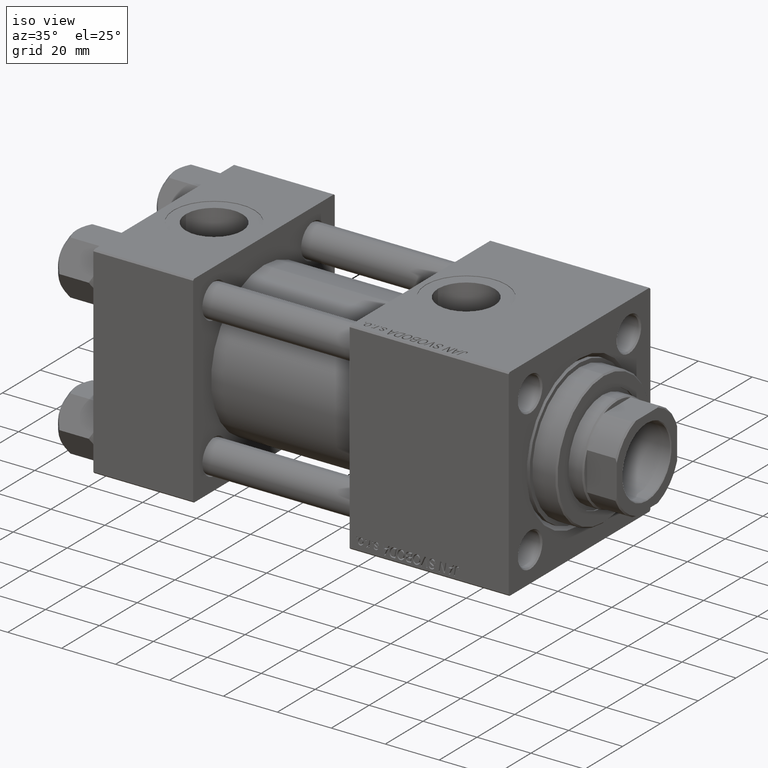
[diagram: clean part render]
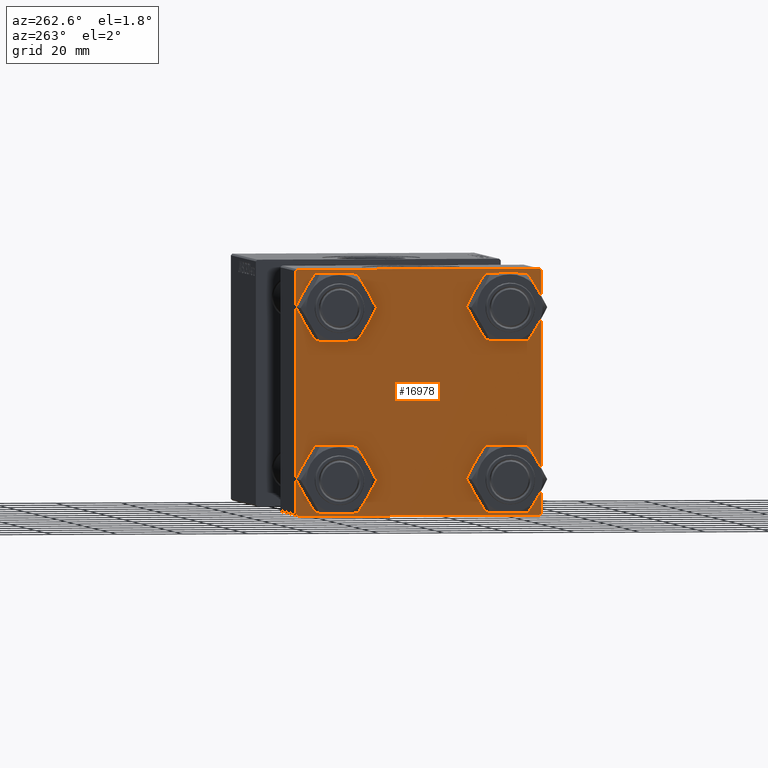
[diagram: tour spotlight — one face highlighted and labeled with its STEP entity id]
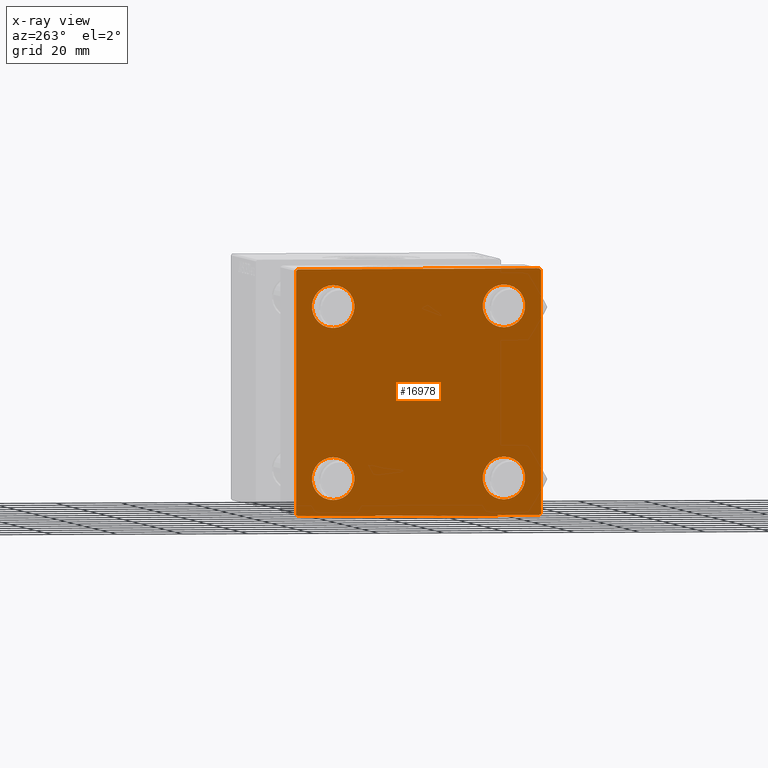
[diagram: x-ray of the same camera — body ghosted, this tour face saturated]
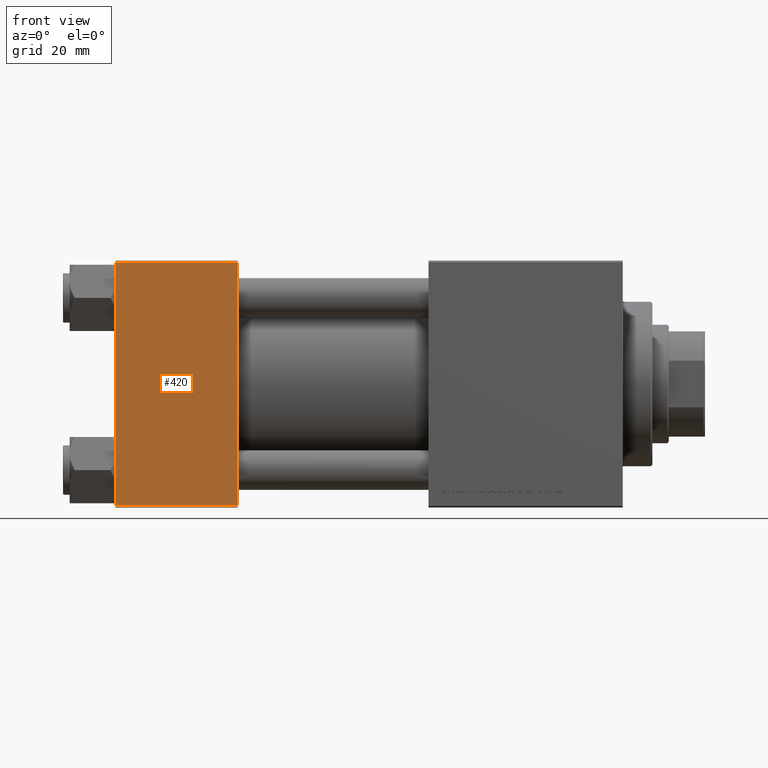
[diagram: tour spotlight — one face highlighted and labeled with its STEP entity id]
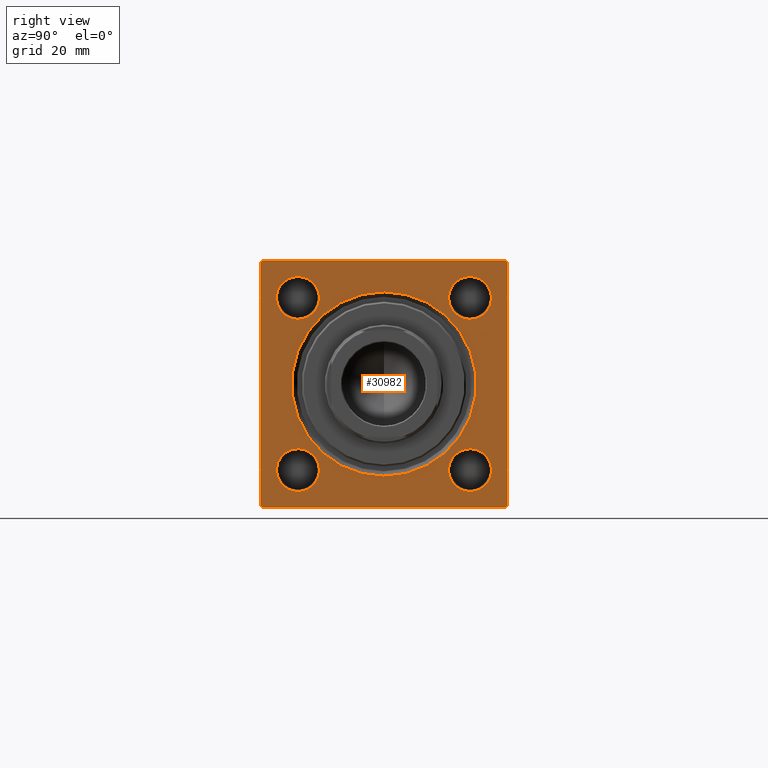
[diagram: tour spotlight — one face highlighted and labeled with its STEP entity id]
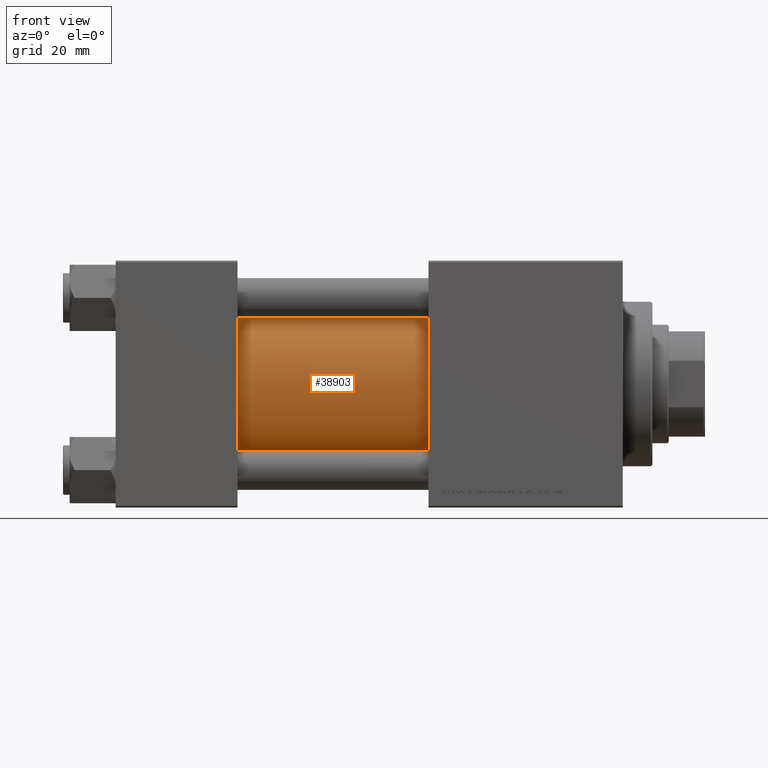
[diagram: tour spotlight — one face highlighted and labeled with its STEP entity id]
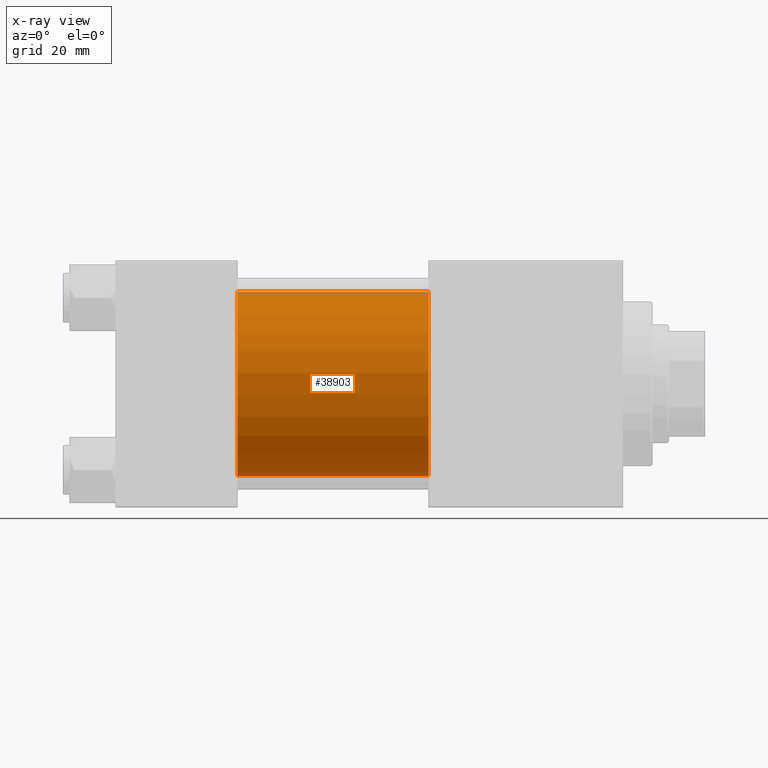
[diagram: x-ray of the same camera — body ghosted, this tour face saturated]
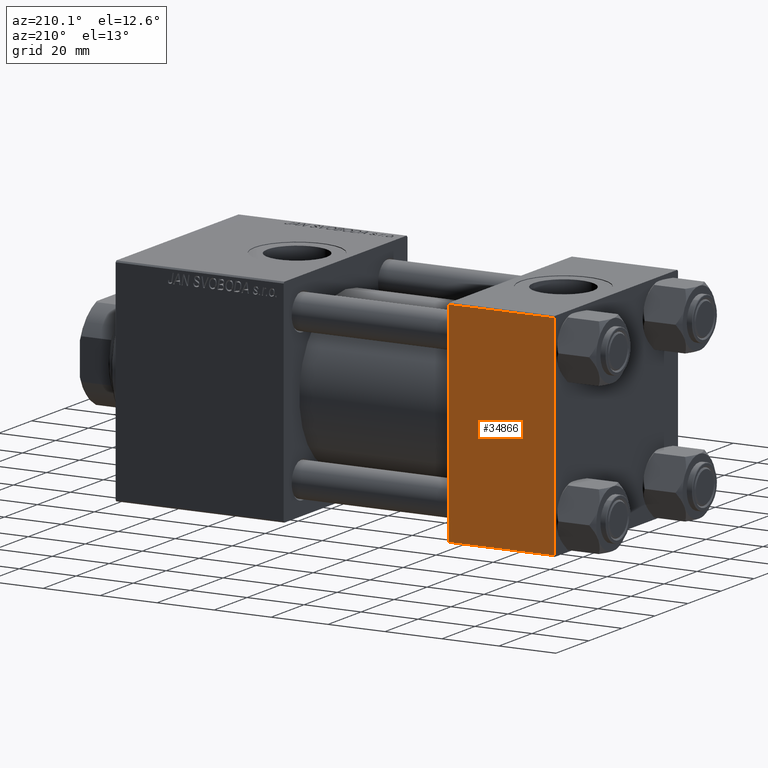
[diagram: tour spotlight — one face highlighted and labeled with its STEP entity id]
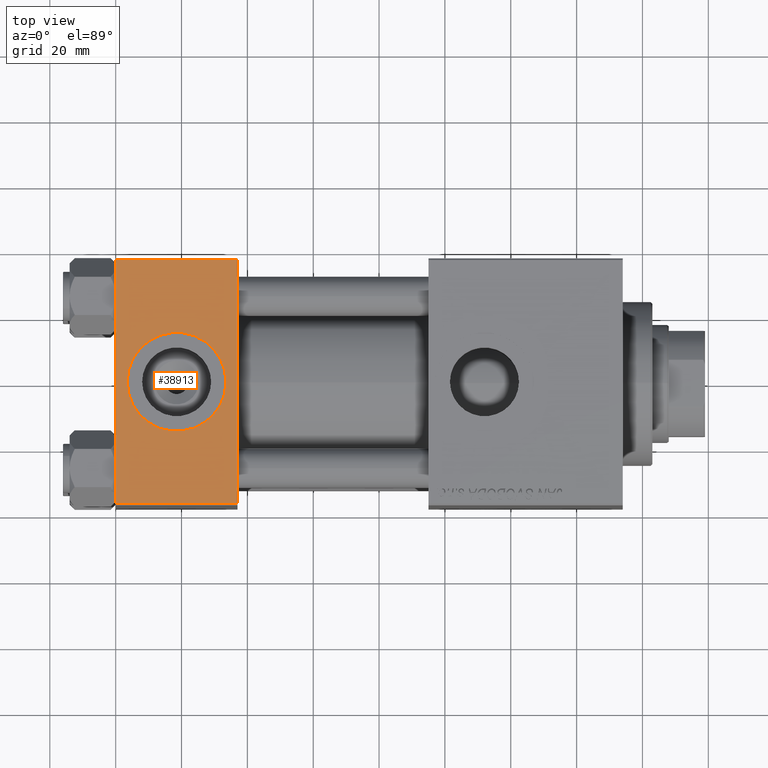
[diagram: tour spotlight — one face highlighted and labeled with its STEP entity id]
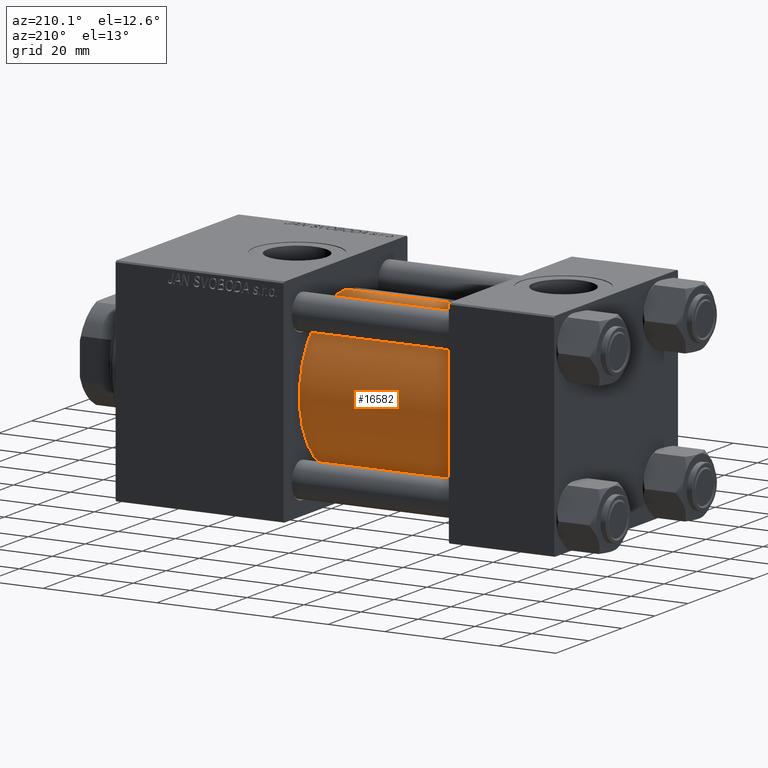
[diagram: tour spotlight — one face highlighted and labeled with its STEP entity id]
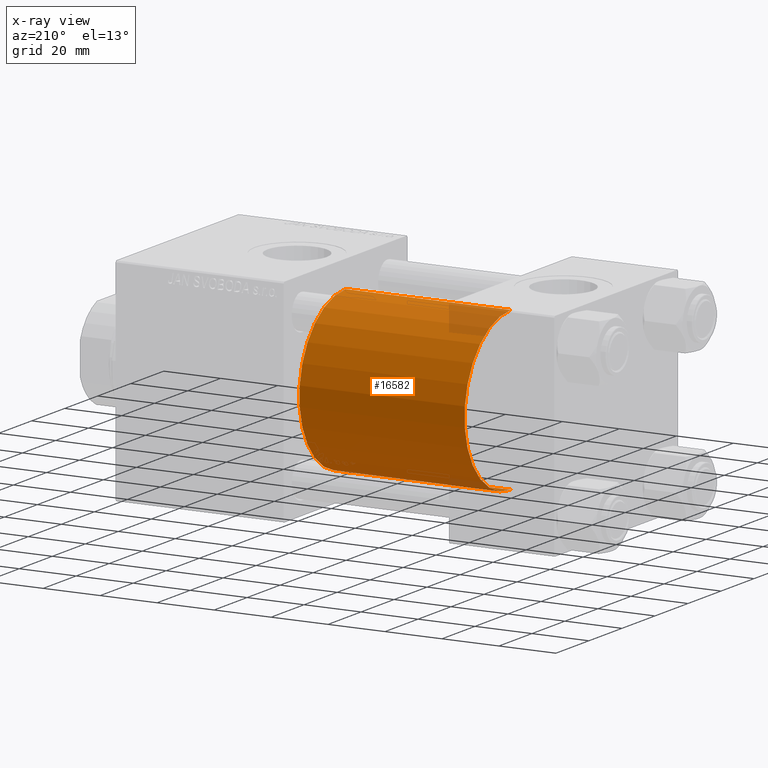
[diagram: x-ray of the same camera — body ghosted, this tour face saturated]
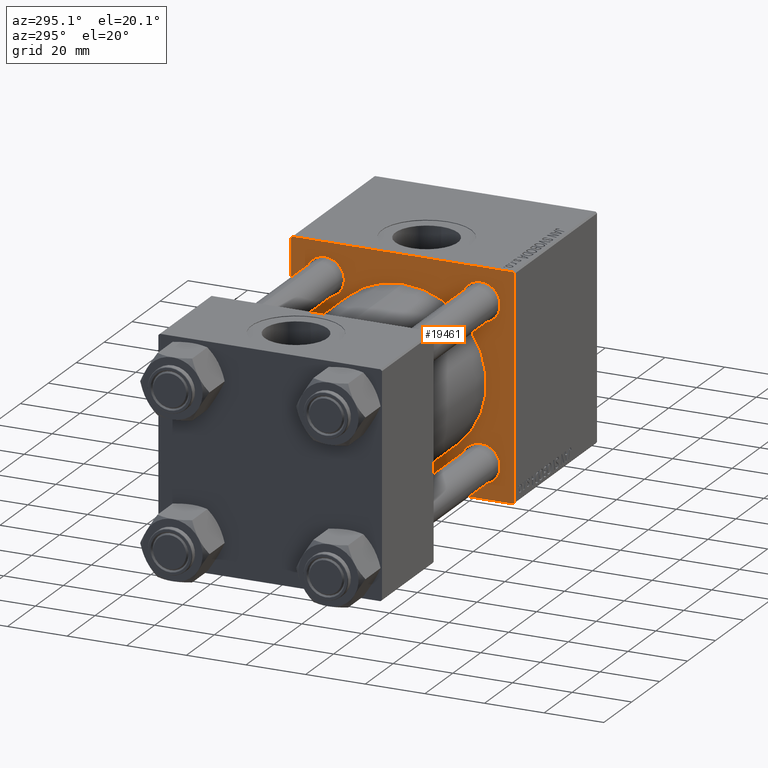
[diagram: tour spotlight — one face highlighted and labeled with its STEP entity id]
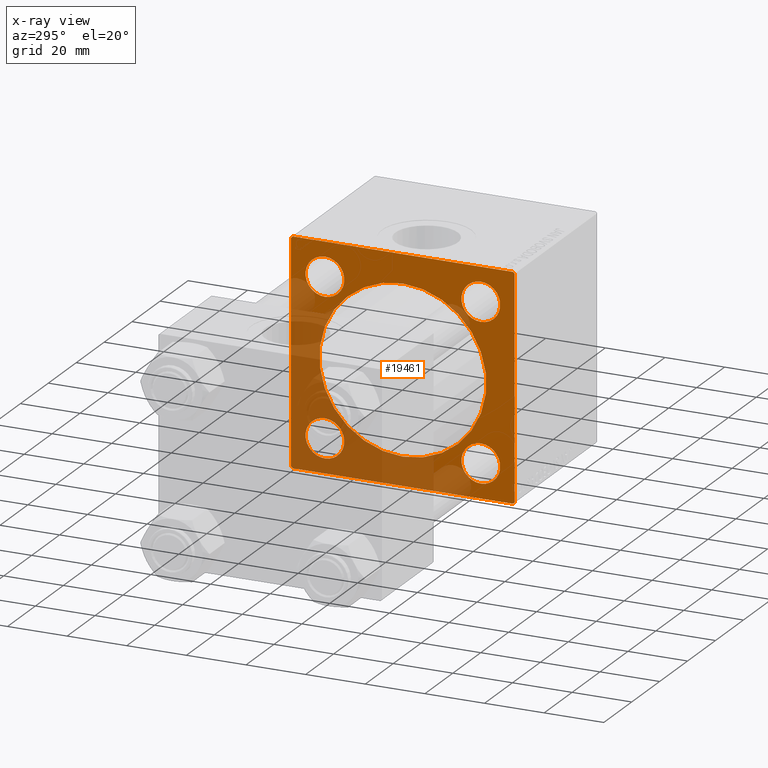
[diagram: x-ray of the same camera — body ghosted, this tour face saturated]
A machine part: a face-by-face anatomy tour. The part has 1148 B-rep faces; the first image is the clean iso view, then the 8 largest visible faces are spotlighted one at a time (largest first), each with its STEP entity span.

Face 1 — auxiliary view, entity #16978. An x-ray twin of the same camera follows (body ghosted, this face saturated) — the face is partly hidden behind the body. In plain terms, the highlighted planar face has unit normal (-1, 0, 0).
Definition (entity closure, byte-faithful):
#201 = CARTESIAN_POINT ( 'NONE',  ( 0.000000000000000000, 37.49999999999999289, 37.00000000000000000 ) ) ;
#1861 = ORIENTED_EDGE ( 'NONE', *, *, #44871, .T. ) ;
#2145 = AXIS2_PLACEMENT_3D ( 'NONE', #3256, #14203, #11138 ) ;
#2211 = CARTESIAN_POINT ( 'NONE',  ( 0.000000000000000000, -37.00000000000000711, 37.49999999999999289 ) ) ;
#2244 = ORIENTED_EDGE ( 'NONE', *, *, #41131, .T. ) ;
#2590 = DIRECTION ( 'NONE',  ( 1.000000000000000000, -0.000000000000000000, 0.000000000000000000 ) ) ;
#2991 = ORIENTED_EDGE ( 'NONE', *, *, #39910, .T. ) ;
#3252 = EDGE_LOOP ( 'NONE', ( #47440, #19599 ) ) ;
#3256 = CARTESIAN_POINT ( 'NONE',  ( 0.000000000000000000, 26.14999999999999858, 26.15000000000000213 ) ) ;
#3515 = DIRECTION ( 'NONE',  ( 0.000000000000000000, 0.000000000000000000, 1.000000000000000000 ) ) ;
#3541 = CARTESIAN_POINT ( 'NONE',  ( -0.000000000000000000, -37.25000000000000000, 37.25000000000000000 ) ) ;
#3987 = CARTESIAN_POINT ( 'NONE',  ( 0.000000000000000000, 37.49999999999999289, 37.50000000000000000 ) ) ;
#4358 = ORIENTED_EDGE ( 'NONE', *, *, #16293, .T. ) ;
#4773 = EDGE_CURVE ( 'NONE', #41568, #28311, #15415, .T. ) ;
#5384 = DIRECTION ( 'NONE',  ( -1.000000000000000000, 0.000000000000000000, -0.000000000000000000 ) ) ;
#5698 = CIRCLE ( 'NONE', #14629, 6.500000000000015987 ) ;
#6023 = ORIENTED_EDGE ( 'NONE', *, *, #26008, .T. ) ;
#6342 = DIRECTION ( 'NONE',  ( -0.000000000000000000, -0.7071067811865474617, -0.7071067811865474617 ) ) ;
#6583 = CIRCLE ( 'NONE', #34926, 6.500000000000023093 ) ;
#7063 = VERTEX_POINT ( 'NONE', #39827 ) ;
#7172 = EDGE_LOOP ( 'NONE', ( #2244, #44410 ) ) ;
#7366 = VECTOR ( 'NONE', #21715, 1000.000000000000000 ) ;
#7405 = AXIS2_PLACEMENT_3D ( 'NONE', #49066, #44978, #37622 ) ;
#7961 = AXIS2_PLACEMENT_3D ( 'NONE', #28205, #15192, #3515 ) ;
#8140 = VECTOR ( 'NONE', #6342, 1000.000000000000114 ) ;
#8266 = EDGE_CURVE ( 'NONE', #12314, #18092, #44579, .T. ) ;
#8304 = EDGE_CURVE ( 'NONE', #32911, #49144, #22250, .T. ) ;
#9104 = EDGE_CURVE ( 'NONE', #17243, #43373, #5698, .T. ) ;
#9139 = EDGE_LOOP ( 'NONE', ( #6023, #29486 ) ) ;
#9177 = EDGE_CURVE ( 'NONE', #32911, #28311, #27616, .T. ) ;
#9698 = FACE_BOUND ( 'NONE', #21310, .T. ) ;
#9870 = VECTOR ( 'NONE', #28211, 1000.000000000000000 ) ;
#10191 = DIRECTION ( 'NONE',  ( 1.000000000000000000, -0.000000000000000000, 0.000000000000000000 ) ) ;
#10433 = CIRCLE ( 'NONE', #20927, 6.500000000000023093 ) ;
#11138 = DIRECTION ( 'NONE',  ( 0.000000000000000000, 0.000000000000000000, 1.000000000000000000 ) ) ;
#11833 = ORIENTED_EDGE ( 'NONE', *, *, #9177, .T. ) ;
#12314 = VERTEX_POINT ( 'NONE', #15660 ) ;
#12336 = ORIENTED_EDGE ( 'NONE', *, *, #38268, .T. ) ;
#12393 = CARTESIAN_POINT ( 'NONE',  ( 0.000000000000000000, -26.14999999999999147, -32.65000000000002700 ) ) ;
#12688 = EDGE_LOOP ( 'NONE', ( #41743, #12336, #2991, #4358, #31345, #11833, #32371, #41682 ) ) ;
#12759 = CARTESIAN_POINT ( 'NONE',  ( 0.000000000000000000, 37.49999999999999289, 37.50000000000000000 ) ) ;
#13002 = FACE_OUTER_BOUND ( 'NONE', #12688, .T. ) ;
#13798 = CARTESIAN_POINT ( 'NONE',  ( 0.000000000000000000, -37.50000000000000000, -37.00000000000003553 ) ) ;
#14203 = DIRECTION ( 'NONE',  ( 1.000000000000000000, -0.000000000000000000, 0.000000000000000000 ) ) ;
#14339 = DIRECTION ( 'NONE',  ( 0.000000000000000000, 0.000000000000000000, 1.000000000000000000 ) ) ;
#14496 = CARTESIAN_POINT ( 'NONE',  ( 0.000000000000000000, 26.14999999999999858, -26.15000000000000213 ) ) ;
#14629 = AXIS2_PLACEMENT_3D ( 'NONE', #41154, #48291, #37362 ) ;
#14790 = CARTESIAN_POINT ( 'NONE',  ( 0.000000000000000000, 36.99999999999999289, 37.50000000000000000 ) ) ;
#14859 = EDGE_CURVE ( 'NONE', #45646, #43543, #27475, .T. ) ;
#15192 = DIRECTION ( 'NONE',  ( 1.000000000000000000, -0.000000000000000000, 0.000000000000000000 ) ) ;
#15415 = LINE ( 'NONE', #3987, #38781 ) ;
#15660 = CARTESIAN_POINT ( 'NONE',  ( 0.000000000000000000, 26.14999999999999858, 19.64999999999998437 ) ) ;
#15766 = CARTESIAN_POINT ( 'NONE',  ( 0.000000000000000000, 26.14999999999999858, -19.64999999999998792 ) ) ;
#16293 = EDGE_CURVE ( 'NONE', #30711, #49144, #41527, .T. ) ;
#16800 = FACE_BOUND ( 'NONE', #9139, .T. ) ;
#16978 = ADVANCED_FACE ( 'NONE', ( #24644, #9698, #17048, #16800, #13002 ), #32269, .T. ) ;
#17048 = FACE_BOUND ( 'NONE', #3252, .T. ) ;
#17243 = VERTEX_POINT ( 'NONE', #15766 ) ;
#17446 = CARTESIAN_POINT ( 'NONE',  ( 0.000000000000000000, 26.14999999999999858, -32.65000000000001990 ) ) ;
#18092 = VERTEX_POINT ( 'NONE', #44505 ) ;
#18098 = AXIS2_PLACEMENT_3D ( 'NONE', #40119, #5384, #32528 ) ;
#18945 = CARTESIAN_POINT ( 'NONE',  ( 0.000000000000000000, -37.24999999999975842, -37.25000000000027001 ) ) ;
#19599 = ORIENTED_EDGE ( 'NONE', *, *, #29957, .T. ) ;
#20927 = AXIS2_PLACEMENT_3D ( 'NONE', #37339, #2590, #26165 ) ;
#21310 = EDGE_LOOP ( 'NONE', ( #49471, #1861 ) ) ;
#21715 = DIRECTION ( 'NONE',  ( 0.000000000000000000, -1.000000000000000000, -9.251858538542972814E-17 ) ) ;
#22250 = LINE ( 'NONE', #45083, #42956 ) ;
#22461 = LINE ( 'NONE', #37939, #43889 ) ;
#22960 = CARTESIAN_POINT ( 'NONE',  ( 0.000000000000000000, -37.00000000000002132, -37.50000000000000711 ) ) ;
#24644 = FACE_BOUND ( 'NONE', #7172, .T. ) ;
#24963 = CARTESIAN_POINT ( 'NONE',  ( 0.000000000000000000, -26.14999999999999147, 32.65000000000003411 ) ) ;
#25249 = VERTEX_POINT ( 'NONE', #24963 ) ;
#26008 = EDGE_CURVE ( 'NONE', #18092, #12314, #42664, .T. ) ;
#26165 = DIRECTION ( 'NONE',  ( 0.000000000000000000, 0.000000000000000000, 1.000000000000000000 ) ) ;
#27028 = CARTESIAN_POINT ( 'NONE',  ( 0.000000000000000000, -37.50000000000000711, 36.99999999999999289 ) ) ;
#27475 = LINE ( 'NONE', #12759, #9870 ) ;
#27616 = LINE ( 'NONE', #3541, #43810 ) ;
#28205 = CARTESIAN_POINT ( 'NONE',  ( 0.000000000000000000, -26.14999999999999147, -26.15000000000000924 ) ) ;
#28211 = DIRECTION ( 'NONE',  ( 0.000000000000000000, 0.000000000000000000, -1.000000000000000000 ) ) ;
#28311 = VERTEX_POINT ( 'NONE', #2211 ) ;
#29367 = DIRECTION ( 'NONE',  ( 1.000000000000000000, -0.000000000000000000, 0.000000000000000000 ) ) ;
#29486 = ORIENTED_EDGE ( 'NONE', *, *, #8266, .T. ) ;
#29957 = EDGE_CURVE ( 'NONE', #43373, #17243, #35396, .T. ) ;
#30134 = DIRECTION ( 'NONE',  ( 0.000000000000000000, 9.251858538542971581E-17, -1.000000000000000000 ) ) ;
#30145 = CARTESIAN_POINT ( 'NONE',  ( 0.000000000000000000, -26.14999999999999147, -19.64999999999999503 ) ) ;
#30405 = VERTEX_POINT ( 'NONE', #30145 ) ;
#30711 = VERTEX_POINT ( 'NONE', #22960 ) ;
#31193 = DIRECTION ( 'NONE',  ( -0.000000000000000000, 0.7071067811865474617, 0.7071067811865474617 ) ) ;
#31345 = ORIENTED_EDGE ( 'NONE', *, *, #8304, .F. ) ;
#32269 = PLANE ( 'NONE',  #18098 ) ;
#32371 = ORIENTED_EDGE ( 'NONE', *, *, #4773, .F. ) ;
#32407 = EDGE_CURVE ( 'NONE', #30405, #37523, #36288, .T. ) ;
#32528 = DIRECTION ( 'NONE',  ( -0.000000000000000000, 0.000000000000000000, 1.000000000000000000 ) ) ;
#32911 = VERTEX_POINT ( 'NONE', #27028 ) ;
#33417 = EDGE_CURVE ( 'NONE', #7063, #25249, #10433, .T. ) ;
#33615 = DIRECTION ( 'NONE',  ( 1.000000000000000000, -0.000000000000000000, 0.000000000000000000 ) ) ;
#33983 = LINE ( 'NONE', #44639, #8140 ) ;
#34926 = AXIS2_PLACEMENT_3D ( 'NONE', #45264, #33615, #14339 ) ;
#35396 = CIRCLE ( 'NONE', #43488, 6.500000000000015987 ) ;
#36288 = CIRCLE ( 'NONE', #7961, 6.500000000000015987 ) ;
#36693 = CARTESIAN_POINT ( 'NONE',  ( 0.000000000000000000, 37.49999999999999289, -37.50000000000000000 ) ) ;
#37339 = CARTESIAN_POINT ( 'NONE',  ( 0.000000000000000000, -26.14999999999999147, 26.15000000000000924 ) ) ;
#37362 = DIRECTION ( 'NONE',  ( 0.000000000000000000, 0.000000000000000000, 1.000000000000000000 ) ) ;
#37485 = CARTESIAN_POINT ( 'NONE',  ( 0.000000000000000000, 26.14999999999999858, 26.15000000000000213 ) ) ;
#37523 = VERTEX_POINT ( 'NONE', #12393 ) ;
#37622 = DIRECTION ( 'NONE',  ( 0.000000000000000000, 0.000000000000000000, 1.000000000000000000 ) ) ;
#37939 = CARTESIAN_POINT ( 'NONE',  ( 0.000000000000000000, 37.24999999999999289, 37.24999999999999289 ) ) ;
#38046 = DIRECTION ( 'NONE',  ( 0.000000000000000000, 0.000000000000000000, 1.000000000000000000 ) ) ;
#38268 = EDGE_CURVE ( 'NONE', #43543, #40405, #33983, .T. ) ;
#38781 = VECTOR ( 'NONE', #46365, 1000.000000000000000 ) ;
#39827 = CARTESIAN_POINT ( 'NONE',  ( 0.000000000000000000, -26.14999999999999147, 19.64999999999999147 ) ) ;
#39910 = EDGE_CURVE ( 'NONE', #40405, #30711, #40229, .T. ) ;
#40119 = CARTESIAN_POINT ( 'NONE',  ( 0.000000000000000000, 0.000000000000000000, 0.000000000000000000 ) ) ;
#40229 = LINE ( 'NONE', #36693, #7366 ) ;
#40405 = VERTEX_POINT ( 'NONE', #45999 ) ;
#41131 = EDGE_CURVE ( 'NONE', #25249, #7063, #6583, .T. ) ;
#41154 = CARTESIAN_POINT ( 'NONE',  ( 0.000000000000000000, 26.14999999999999858, -26.15000000000000213 ) ) ;
#41527 = LINE ( 'NONE', #18945, #42490 ) ;
#41568 = VERTEX_POINT ( 'NONE', #14790 ) ;
#41682 = ORIENTED_EDGE ( 'NONE', *, *, #45785, .T. ) ;
#41743 = ORIENTED_EDGE ( 'NONE', *, *, #14859, .T. ) ;
#42267 = DIRECTION ( 'NONE',  ( 0.000000000000000000, -0.7071067811865524577, 0.7071067811865426878 ) ) ;
#42490 = VECTOR ( 'NONE', #42267, 1000.000000000000000 ) ;
#42664 = CIRCLE ( 'NONE', #2145, 6.500000000000023093 ) ;
#42956 = VECTOR ( 'NONE', #30134, 1000.000000000000000 ) ;
#43037 = CARTESIAN_POINT ( 'NONE',  ( 0.000000000000000000, 37.49999999999999289, -36.99999999999998579 ) ) ;
#43373 = VERTEX_POINT ( 'NONE', #17446 ) ;
#43488 = AXIS2_PLACEMENT_3D ( 'NONE', #14496, #10191, #38046 ) ;
#43543 = VERTEX_POINT ( 'NONE', #43037 ) ;
#43810 = VECTOR ( 'NONE', #31193, 1000.000000000000114 ) ;
#43845 = CIRCLE ( 'NONE', #7405, 6.500000000000015987 ) ;
#43889 = VECTOR ( 'NONE', #45309, 1000.000000000000114 ) ;
#44410 = ORIENTED_EDGE ( 'NONE', *, *, #33417, .T. ) ;
#44505 = CARTESIAN_POINT ( 'NONE',  ( 0.000000000000000000, 26.14999999999999858, 32.65000000000002700 ) ) ;
#44579 = CIRCLE ( 'NONE', #46223, 6.500000000000023093 ) ;
#44639 = CARTESIAN_POINT ( 'NONE',  ( 0.000000000000000000, 37.24999999999998579, -37.24999999999998579 ) ) ;
#44871 = EDGE_CURVE ( 'NONE', #37523, #30405, #43845, .T. ) ;
#44978 = DIRECTION ( 'NONE',  ( 1.000000000000000000, -0.000000000000000000, 0.000000000000000000 ) ) ;
#45083 = CARTESIAN_POINT ( 'NONE',  ( 0.000000000000000000, -37.50000000000000711, 37.49999999999999289 ) ) ;
#45264 = CARTESIAN_POINT ( 'NONE',  ( 0.000000000000000000, -26.14999999999999147, 26.15000000000000924 ) ) ;
#45309 = DIRECTION ( 'NONE',  ( 0.000000000000000000, 0.7071067811865474617, -0.7071067811865474617 ) ) ;
#45646 = VERTEX_POINT ( 'NONE', #201 ) ;
#45785 = EDGE_CURVE ( 'NONE', #41568, #45646, #22461, .T. ) ;
#45999 = CARTESIAN_POINT ( 'NONE',  ( 0.000000000000000000, 36.99999999999997868, -37.50000000000000000 ) ) ;
#46223 = AXIS2_PLACEMENT_3D ( 'NONE', #37485, #29367, #48671 ) ;
#46365 = DIRECTION ( 'NONE',  ( 0.000000000000000000, -1.000000000000000000, -9.251858538542971581E-17 ) ) ;
#47440 = ORIENTED_EDGE ( 'NONE', *, *, #9104, .T. ) ;
#48291 = DIRECTION ( 'NONE',  ( 1.000000000000000000, -0.000000000000000000, 0.000000000000000000 ) ) ;
#48671 = DIRECTION ( 'NONE',  ( 0.000000000000000000, 0.000000000000000000, 1.000000000000000000 ) ) ;
#49066 = CARTESIAN_POINT ( 'NONE',  ( 0.000000000000000000, -26.14999999999999147, -26.15000000000000924 ) ) ;
#49144 = VERTEX_POINT ( 'NONE', #13798 ) ;
#49471 = ORIENTED_EDGE ( 'NONE', *, *, #32407, .T. ) ;

Face 2 — front view, entity #420. In plain terms, the highlighted planar face has unit normal (0, 1, 0).
Definition (entity closure, byte-faithful):
#420 = ADVANCED_FACE ( 'NONE', ( #12896 ), #36467, .F. ) ;
#566 = VERTEX_POINT ( 'NONE', #43034 ) ;
#1713 = DIRECTION ( 'NONE',  ( 0.000000000000000000, -9.251858538542971581E-17, 1.000000000000000000 ) ) ;
#1774 = LINE ( 'NONE', #24351, #3226 ) ;
#3226 = VECTOR ( 'NONE', #44386, 1000.000000000000000 ) ;
#4807 = ORIENTED_EDGE ( 'NONE', *, *, #9143, .T. ) ;
#6393 = ORIENTED_EDGE ( 'NONE', *, *, #8304, .T. ) ;
#7118 = EDGE_CURVE ( 'NONE', #38315, #566, #1774, .T. ) ;
#7154 = VECTOR ( 'NONE', #33808, 1000.000000000000000 ) ;
#8304 = EDGE_CURVE ( 'NONE', #32911, #49144, #22250, .T. ) ;
#9143 = EDGE_CURVE ( 'NONE', #38315, #32911, #13533, .T. ) ;
#10900 = EDGE_LOOP ( 'NONE', ( #6393, #29784, #17234, #4807 ) ) ;
#12193 = VECTOR ( 'NONE', #44464, 1000.000000000000000 ) ;
#12896 = FACE_OUTER_BOUND ( 'NONE', #10900, .T. ) ;
#13533 = LINE ( 'NONE', #28986, #12193 ) ;
#13798 = CARTESIAN_POINT ( 'NONE',  ( 0.000000000000000000, -37.50000000000000000, -37.00000000000003553 ) ) ;
#17234 = ORIENTED_EDGE ( 'NONE', *, *, #7118, .F. ) ;
#18075 = LINE ( 'NONE', #33561, #7154 ) ;
#22250 = LINE ( 'NONE', #45083, #42956 ) ;
#22545 = CARTESIAN_POINT ( 'NONE',  ( 37.00000000000000000, -37.50000000000000711, 36.99999999999999289 ) ) ;
#24351 = CARTESIAN_POINT ( 'NONE',  ( 37.00000000000000000, -37.50000000000000711, 37.49999999999999289 ) ) ;
#27028 = CARTESIAN_POINT ( 'NONE',  ( 0.000000000000000000, -37.50000000000000711, 36.99999999999999289 ) ) ;
#28346 = CARTESIAN_POINT ( 'NONE',  ( 37.00000000000000000, -37.50000000000000711, 37.49999999999999289 ) ) ;
#28986 = CARTESIAN_POINT ( 'NONE',  ( 37.00000000000000000, -37.50000000000000711, 36.99999999999999289 ) ) ;
#29042 = AXIS2_PLACEMENT_3D ( 'NONE', #28346, #43830, #1713 ) ;
#29784 = ORIENTED_EDGE ( 'NONE', *, *, #33877, .T. ) ;
#30134 = DIRECTION ( 'NONE',  ( 0.000000000000000000, 9.251858538542971581E-17, -1.000000000000000000 ) ) ;
#32911 = VERTEX_POINT ( 'NONE', #27028 ) ;
#33561 = CARTESIAN_POINT ( 'NONE',  ( 37.00000000000000000, -37.50000000000000000, -37.00000000000003553 ) ) ;
#33808 = DIRECTION ( 'NONE',  ( 1.000000000000000000, 0.000000000000000000, 0.000000000000000000 ) ) ;
#33877 = EDGE_CURVE ( 'NONE', #49144, #566, #18075, .T. ) ;
#36467 = PLANE ( 'NONE',  #29042 ) ;
#38315 = VERTEX_POINT ( 'NONE', #22545 ) ;
#42956 = VECTOR ( 'NONE', #30134, 1000.000000000000000 ) ;
#43034 = CARTESIAN_POINT ( 'NONE',  ( 37.00000000000000000, -37.50000000000000000, -37.00000000000003553 ) ) ;
#43830 = DIRECTION ( 'NONE',  ( -0.000000000000000000, 1.000000000000000000, 9.251858538542971581E-17 ) ) ;
#44386 = DIRECTION ( 'NONE',  ( 0.000000000000000000, 9.251858538542971581E-17, -1.000000000000000000 ) ) ;
#44464 = DIRECTION ( 'NONE',  ( -1.000000000000000000, 0.000000000000000000, 0.000000000000000000 ) ) ;
#45083 = CARTESIAN_POINT ( 'NONE',  ( 0.000000000000000000, -37.50000000000000711, 37.49999999999999289 ) ) ;
#49144 = VERTEX_POINT ( 'NONE', #13798 ) ;

Face 3 — right view, entity #30982. In plain terms, the highlighted planar face has unit normal (-1, 0, 0).
Definition (entity closure, byte-faithful):
#935 = CIRCLE ( 'NONE', #2574, 6.499999999999974243 ) ;
#1413 = VECTOR ( 'NONE', #10041, 1000.000000000000000 ) ;
#2500 = CIRCLE ( 'NONE', #9002, 6.499999999999974243 ) ;
#2505 = DIRECTION ( 'NONE',  ( -1.000000000000000000, -0.000000000000000000, 0.000000000000000000 ) ) ;
#2574 = AXIS2_PLACEMENT_3D ( 'NONE', #36660, #28034, #23114 ) ;
#3576 = EDGE_CURVE ( 'NONE', #28368, #44960, #18746, .T. ) ;
#3622 = FACE_BOUND ( 'NONE', #15556, .T. ) ;
#3665 = DIRECTION ( 'NONE',  ( 0.000000000000000000, 0.000000000000000000, 1.000000000000000000 ) ) ;
#4287 = DIRECTION ( 'NONE',  ( 0.000000000000000000, 0.000000000000000000, 1.000000000000000000 ) ) ;
#4463 = CARTESIAN_POINT ( 'NONE',  ( 154.0000000000000000, -37.50000000000000711, -37.00000000000000711 ) ) ;
#5003 = EDGE_CURVE ( 'NONE', #17544, #41484, #28181, .T. ) ;
#6915 = CARTESIAN_POINT ( 'NONE',  ( 154.0000000000000000, 37.00000000000000000, 37.49999999999999289 ) ) ;
#7130 = DIRECTION ( 'NONE',  ( 0.000000000000000000, 0.000000000000000000, 1.000000000000000000 ) ) ;
#7358 = DIRECTION ( 'NONE',  ( 0.000000000000000000, -1.000000000000000000, -1.850371707708594316E-16 ) ) ;
#7491 = DIRECTION ( 'NONE',  ( -1.000000000000000000, -0.000000000000000000, 0.000000000000000000 ) ) ;
#7599 = ORIENTED_EDGE ( 'NONE', *, *, #15325, .T. ) ;
#7617 = CARTESIAN_POINT ( 'NONE',  ( 154.0000000000000000, 37.50000000000000000, 37.49999999999999289 ) ) ;
#7673 = CARTESIAN_POINT ( 'NONE',  ( 154.0000000000000000, 37.50000000000000000, -37.50000000000000000 ) ) ;
#8430 = DIRECTION ( 'NONE',  ( 0.000000000000000000, -1.000000000000000000, 0.000000000000000000 ) ) ;
#8821 = VECTOR ( 'NONE', #12171, 1000.000000000000000 ) ;
#8963 = VECTOR ( 'NONE', #8430, 1000.000000000000000 ) ;
#9002 = AXIS2_PLACEMENT_3D ( 'NONE', #12971, #16774, #43650 ) ;
#9980 = EDGE_LOOP ( 'NONE', ( #7599, #30819 ) ) ;
#10041 = DIRECTION ( 'NONE',  ( 0.000000000000000000, -9.251858538542972814E-17, -1.000000000000000000 ) ) ;
#11242 = CARTESIAN_POINT ( 'NONE',  ( 154.0000000000000000, 37.50000000000000000, -36.99999999999999289 ) ) ;
#11271 = DIRECTION ( 'NONE',  ( -1.000000000000000000, -0.000000000000000000, 0.000000000000000000 ) ) ;
#11313 = EDGE_CURVE ( 'NONE', #16985, #28767, #42215, .T. ) ;
#11505 = CARTESIAN_POINT ( 'NONE',  ( 154.0000000000000000, 0.000000000000000000, 0.000000000000000000 ) ) ;
#11574 = EDGE_CURVE ( 'NONE', #32692, #33240, #38970, .T. ) ;
#12003 = CARTESIAN_POINT ( 'NONE',  ( 154.0000000000000000, -37.50000000000000000, 36.99999999999995026 ) ) ;
#12171 = DIRECTION ( 'NONE',  ( 0.000000000000000000, 0.7071067811865671127, -0.7071067811865279218 ) ) ;
#12234 = EDGE_CURVE ( 'NONE', #28368, #33909, #40509, .T. ) ;
#12587 = EDGE_CURVE ( 'NONE', #22518, #49437, #38209, .T. ) ;
#12971 = CARTESIAN_POINT ( 'NONE',  ( 154.0000000000000000, -26.15000000000000213, -26.15000000000000213 ) ) ;
#13393 = DIRECTION ( 'NONE',  ( 0.000000000000000000, -0.7071067811865474617, 0.7071067811865474617 ) ) ;
#13548 = EDGE_LOOP ( 'NONE', ( #23096, #14374 ) ) ;
#13817 = CARTESIAN_POINT ( 'NONE',  ( 154.0000000000000000, 26.14999999999999858, 32.65000000000001279 ) ) ;
#14374 = ORIENTED_EDGE ( 'NONE', *, *, #48561, .T. ) ;
#15325 = EDGE_CURVE ( 'NONE', #42938, #45894, #26036, .T. ) ;
#15458 = CARTESIAN_POINT ( 'NONE',  ( 154.0000000000000000, 26.14999999999999858, 26.15000000000000213 ) ) ;
#15478 = VECTOR ( 'NONE', #7358, 1000.000000000000000 ) ;
#15556 = EDGE_LOOP ( 'NONE', ( #34274, #25689 ) ) ;
#15753 = EDGE_CURVE ( 'NONE', #49437, #22518, #935, .T. ) ;
#16107 = VECTOR ( 'NONE', #45645, 1000.000000000000000 ) ;
#16774 = DIRECTION ( 'NONE',  ( -1.000000000000000000, -0.000000000000000000, 0.000000000000000000 ) ) ;
#16985 = VERTEX_POINT ( 'NONE', #20842 ) ;
#17131 = AXIS2_PLACEMENT_3D ( 'NONE', #15458, #30922, #4287 ) ;
#17255 = CARTESIAN_POINT ( 'NONE',  ( 154.0000000000000000, -36.99999999999998579, -37.50000000000000000 ) ) ;
#17544 = VERTEX_POINT ( 'NONE', #23541 ) ;
#17861 = ORIENTED_EDGE ( 'NONE', *, *, #11574, .T. ) ;
#18008 = CARTESIAN_POINT ( 'NONE',  ( 154.0000000000000000, 37.50000000000000000, 37.49999999999999289 ) ) ;
#18320 = VERTEX_POINT ( 'NONE', #17255 ) ;
#18546 = DIRECTION ( 'NONE',  ( -1.000000000000000000, -0.000000000000000000, 0.000000000000000000 ) ) ;
#18727 = AXIS2_PLACEMENT_3D ( 'NONE', #49208, #2505, #33480 ) ;
#18746 = LINE ( 'NONE', #18008, #16107 ) ;
#19089 = FACE_BOUND ( 'NONE', #9980, .T. ) ;
#19132 = CARTESIAN_POINT ( 'NONE',  ( 154.0000000000000000, 37.50000000000000000, 36.99999999999999289 ) ) ;
#19292 = ORIENTED_EDGE ( 'NONE', *, *, #34988, .T. ) ;
#20000 = VECTOR ( 'NONE', #45875, 999.9999999999998863 ) ;
#20144 = AXIS2_PLACEMENT_3D ( 'NONE', #45907, #22075, #34003 ) ;
#20278 = ORIENTED_EDGE ( 'NONE', *, *, #15753, .T. ) ;
#20842 = CARTESIAN_POINT ( 'NONE',  ( 154.0000000000000000, 3.429011037612588881E-15, 27.99999999999999645 ) ) ;
#22075 = DIRECTION ( 'NONE',  ( -1.000000000000000000, -0.000000000000000000, 0.000000000000000000 ) ) ;
#22518 = VERTEX_POINT ( 'NONE', #31202 ) ;
#22531 = LINE ( 'NONE', #38004, #20000 ) ;
#22677 = VERTEX_POINT ( 'NONE', #33624 ) ;
#22901 = PLANE ( 'NONE',  #34632 ) ;
#23096 = ORIENTED_EDGE ( 'NONE', *, *, #34917, .T. ) ;
#23114 = DIRECTION ( 'NONE',  ( 0.000000000000000000, 0.000000000000000000, 1.000000000000000000 ) ) ;
#23505 = DIRECTION ( 'NONE',  ( 0.000000000000000000, 0.000000000000000000, 1.000000000000000000 ) ) ;
#23541 = CARTESIAN_POINT ( 'NONE',  ( 154.0000000000000000, -36.99999999999997158, 37.49999999999997868 ) ) ;
#23761 = DIRECTION ( 'NONE',  ( -1.000000000000000000, -0.000000000000000000, 0.000000000000000000 ) ) ;
#24780 = CARTESIAN_POINT ( 'NONE',  ( 154.0000000000000000, 37.00000000000000000, 37.49999999999999289 ) ) ;
#24869 = ORIENTED_EDGE ( 'NONE', *, *, #44187, .T. ) ;
#25071 = ORIENTED_EDGE ( 'NONE', *, *, #3576, .F. ) ;
#25122 = CARTESIAN_POINT ( 'NONE',  ( 154.0000000000000000, 26.14999999999999858, -32.64999999999998437 ) ) ;
#25689 = ORIENTED_EDGE ( 'NONE', *, *, #11313, .T. ) ;
#26002 = EDGE_CURVE ( 'NONE', #43736, #44960, #22531, .T. ) ;
#26036 = CIRCLE ( 'NONE', #17131, 6.500000000000008882 ) ;
#26087 = EDGE_LOOP ( 'NONE', ( #42680, #19292, #27568, #47688, #25071, #45250, #24869, #41060 ) ) ;
#26603 = CIRCLE ( 'NONE', #20144, 6.499999999999974243 ) ;
#26863 = CIRCLE ( 'NONE', #29304, 27.99999999999999645 ) ;
#26947 = FACE_BOUND ( 'NONE', #13548, .T. ) ;
#27108 = LINE ( 'NONE', #31931, #8821 ) ;
#27439 = DIRECTION ( 'NONE',  ( -0.000000000000000000, -0.7071067811865474617, -0.7071067811865474617 ) ) ;
#27450 = VECTOR ( 'NONE', #27439, 1000.000000000000114 ) ;
#27568 = ORIENTED_EDGE ( 'NONE', *, *, #42876, .F. ) ;
#27737 = EDGE_CURVE ( 'NONE', #41484, #40994, #37154, .T. ) ;
#28034 = DIRECTION ( 'NONE',  ( -1.000000000000000000, -0.000000000000000000, 0.000000000000000000 ) ) ;
#28181 = LINE ( 'NONE', #12003, #27450 ) ;
#28368 = VERTEX_POINT ( 'NONE', #19132 ) ;
#28767 = VERTEX_POINT ( 'NONE', #38595 ) ;
#28781 = EDGE_CURVE ( 'NONE', #33240, #32692, #49972, .T. ) ;
#29304 = AXIS2_PLACEMENT_3D ( 'NONE', #41452, #11271, #38143 ) ;
#29823 = CARTESIAN_POINT ( 'NONE',  ( 154.0000000000000000, 37.00000000000000000, -37.50000000000000000 ) ) ;
#30819 = ORIENTED_EDGE ( 'NONE', *, *, #43544, .T. ) ;
#30922 = DIRECTION ( 'NONE',  ( -1.000000000000000000, -0.000000000000000000, 0.000000000000000000 ) ) ;
#30982 = ADVANCED_FACE ( 'NONE', ( #19089, #49575, #26947, #38372, #3622, #34080 ), #22901, .F. ) ;
#31202 = CARTESIAN_POINT ( 'NONE',  ( 154.0000000000000000, 26.14999999999999858, -19.65000000000002345 ) ) ;
#31931 = CARTESIAN_POINT ( 'NONE',  ( 154.0000000000000000, -36.99999999999998579, -37.50000000000000000 ) ) ;
#32692 = VERTEX_POINT ( 'NONE', #48395 ) ;
#33240 = VERTEX_POINT ( 'NONE', #38645 ) ;
#33480 = DIRECTION ( 'NONE',  ( 0.000000000000000000, 0.000000000000000000, 1.000000000000000000 ) ) ;
#33624 = CARTESIAN_POINT ( 'NONE',  ( 154.0000000000000000, -26.15000000000000213, -19.65000000000002345 ) ) ;
#33909 = VERTEX_POINT ( 'NONE', #6915 ) ;
#34003 = DIRECTION ( 'NONE',  ( 0.000000000000000000, 0.000000000000000000, 1.000000000000000000 ) ) ;
#34071 = ORIENTED_EDGE ( 'NONE', *, *, #12587, .T. ) ;
#34080 = FACE_OUTER_BOUND ( 'NONE', #26087, .T. ) ;
#34274 = ORIENTED_EDGE ( 'NONE', *, *, #41174, .T. ) ;
#34312 = CARTESIAN_POINT ( 'NONE',  ( 154.0000000000000000, -26.14999999999999147, 26.14999999999999503 ) ) ;
#34632 = AXIS2_PLACEMENT_3D ( 'NONE', #11505, #45494, #41424 ) ;
#34917 = EDGE_CURVE ( 'NONE', #40174, #22677, #26603, .T. ) ;
#34988 = EDGE_CURVE ( 'NONE', #40994, #18320, #27108, .T. ) ;
#35422 = CARTESIAN_POINT ( 'NONE',  ( 154.0000000000000000, 26.14999999999999858, 26.15000000000000213 ) ) ;
#36660 = CARTESIAN_POINT ( 'NONE',  ( 154.0000000000000000, 26.14999999999999858, -26.15000000000000213 ) ) ;
#37154 = LINE ( 'NONE', #45528, #1413 ) ;
#37256 = ORIENTED_EDGE ( 'NONE', *, *, #28781, .T. ) ;
#38004 = CARTESIAN_POINT ( 'NONE',  ( 154.0000000000000000, 37.50000000000000000, -36.99999999999999289 ) ) ;
#38061 = EDGE_LOOP ( 'NONE', ( #37256, #17861 ) ) ;
#38143 = DIRECTION ( 'NONE',  ( 0.000000000000000000, 0.000000000000000000, 1.000000000000000000 ) ) ;
#38209 = CIRCLE ( 'NONE', #40628, 6.499999999999974243 ) ;
#38354 = DIRECTION ( 'NONE',  ( -1.000000000000000000, -0.000000000000000000, 0.000000000000000000 ) ) ;
#38372 = FACE_BOUND ( 'NONE', #45685, .T. ) ;
#38595 = CARTESIAN_POINT ( 'NONE',  ( 154.0000000000000000, 0.000000000000000000, -27.99999999999999645 ) ) ;
#38645 = CARTESIAN_POINT ( 'NONE',  ( 154.0000000000000000, -26.14999999999999147, 19.64999999999999503 ) ) ;
#38970 = CIRCLE ( 'NONE', #18727, 6.500000000000002665 ) ;
#39745 = AXIS2_PLACEMENT_3D ( 'NONE', #35422, #23761, #23505 ) ;
#40174 = VERTEX_POINT ( 'NONE', #46576 ) ;
#40509 = LINE ( 'NONE', #24780, #43894 ) ;
#40628 = AXIS2_PLACEMENT_3D ( 'NONE', #41713, #7491, #3665 ) ;
#40994 = VERTEX_POINT ( 'NONE', #4463 ) ;
#41024 = AXIS2_PLACEMENT_3D ( 'NONE', #34312, #38354, #42649 ) ;
#41060 = ORIENTED_EDGE ( 'NONE', *, *, #5003, .T. ) ;
#41174 = EDGE_CURVE ( 'NONE', #28767, #16985, #26863, .T. ) ;
#41424 = DIRECTION ( 'NONE',  ( 0.000000000000000000, 0.000000000000000000, 1.000000000000000000 ) ) ;
#41429 = AXIS2_PLACEMENT_3D ( 'NONE', #45686, #18546, #7130 ) ;
#41452 = CARTESIAN_POINT ( 'NONE',  ( 154.0000000000000000, 0.000000000000000000, 0.000000000000000000 ) ) ;
#41484 = VERTEX_POINT ( 'NONE', #41633 ) ;
#41633 = CARTESIAN_POINT ( 'NONE',  ( 154.0000000000000000, -37.50000000000000000, 36.99999999999995026 ) ) ;
#41713 = CARTESIAN_POINT ( 'NONE',  ( 154.0000000000000000, 26.14999999999999858, -26.15000000000000213 ) ) ;
#42215 = CIRCLE ( 'NONE', #41429, 27.99999999999999645 ) ;
#42398 = LINE ( 'NONE', #7673, #8963 ) ;
#42649 = DIRECTION ( 'NONE',  ( 0.000000000000000000, 0.000000000000000000, 1.000000000000000000 ) ) ;
#42680 = ORIENTED_EDGE ( 'NONE', *, *, #27737, .T. ) ;
#42876 = EDGE_CURVE ( 'NONE', #43736, #18320, #42398, .T. ) ;
#42938 = VERTEX_POINT ( 'NONE', #47235 ) ;
#43544 = EDGE_CURVE ( 'NONE', #45894, #42938, #49536, .T. ) ;
#43650 = DIRECTION ( 'NONE',  ( 0.000000000000000000, 0.000000000000000000, 1.000000000000000000 ) ) ;
#43736 = VERTEX_POINT ( 'NONE', #29823 ) ;
#43894 = VECTOR ( 'NONE', #13393, 1000.000000000000114 ) ;
#44187 = EDGE_CURVE ( 'NONE', #33909, #17544, #46166, .T. ) ;
#44960 = VERTEX_POINT ( 'NONE', #11242 ) ;
#45250 = ORIENTED_EDGE ( 'NONE', *, *, #12234, .T. ) ;
#45494 = DIRECTION ( 'NONE',  ( -1.000000000000000000, -0.000000000000000000, 0.000000000000000000 ) ) ;
#45528 = CARTESIAN_POINT ( 'NONE',  ( 154.0000000000000000, -37.50000000000000000, 37.49999999999997868 ) ) ;
#45645 = DIRECTION ( 'NONE',  ( 0.000000000000000000, 0.000000000000000000, -1.000000000000000000 ) ) ;
#45685 = EDGE_LOOP ( 'NONE', ( #20278, #34071 ) ) ;
#45686 = CARTESIAN_POINT ( 'NONE',  ( 154.0000000000000000, 0.000000000000000000, 0.000000000000000000 ) ) ;
#45875 = DIRECTION ( 'NONE',  ( -0.000000000000000000, 0.7071067811865425767, 0.7071067811865525687 ) ) ;
#45894 = VERTEX_POINT ( 'NONE', #13817 ) ;
#45907 = CARTESIAN_POINT ( 'NONE',  ( 154.0000000000000000, -26.15000000000000213, -26.15000000000000213 ) ) ;
#46166 = LINE ( 'NONE', #7617, #15478 ) ;
#46576 = CARTESIAN_POINT ( 'NONE',  ( 154.0000000000000000, -26.15000000000000213, -32.64999999999998437 ) ) ;
#47235 = CARTESIAN_POINT ( 'NONE',  ( 154.0000000000000000, 26.14999999999999858, 19.64999999999999503 ) ) ;
#47688 = ORIENTED_EDGE ( 'NONE', *, *, #26002, .T. ) ;
#48395 = CARTESIAN_POINT ( 'NONE',  ( 154.0000000000000000, -26.14999999999999147, 32.64999999999999858 ) ) ;
#48561 = EDGE_CURVE ( 'NONE', #22677, #40174, #2500, .T. ) ;
#49208 = CARTESIAN_POINT ( 'NONE',  ( 154.0000000000000000, -26.14999999999999147, 26.14999999999999503 ) ) ;
#49437 = VERTEX_POINT ( 'NONE', #25122 ) ;
#49536 = CIRCLE ( 'NONE', #39745, 6.500000000000008882 ) ;
#49575 = FACE_BOUND ( 'NONE', #38061, .T. ) ;
#49972 = CIRCLE ( 'NONE', #41024, 6.500000000000002665 ) ;

Face 4 — front view, entity #38903. An x-ray twin of the same camera follows (body ghosted, this face saturated) — the face is partly hidden behind the body. In plain terms, the highlighted cylindrical surface (partial cylindrical patch) has radius 28 mm, axis along (-1, -0, -0).
Definition (entity closure, byte-faithful):
#152 = CARTESIAN_POINT ( 'NONE',  ( 37.00000000000000000, -2.602085213965210642E-15, 0.000000000000000000 ) ) ;
#748 = EDGE_CURVE ( 'NONE', #29528, #14216, #32871, .T. ) ;
#2818 = ORIENTED_EDGE ( 'NONE', *, *, #22087, .T. ) ;
#2879 = CIRCLE ( 'NONE', #38501, 28.00000000000000000 ) ;
#3057 = AXIS2_PLACEMENT_3D ( 'NONE', #33745, #38023, #45396 ) ;
#4760 = VERTEX_POINT ( 'NONE', #30878 ) ;
#5575 = ORIENTED_EDGE ( 'NONE', *, *, #12514, .T. ) ;
#7801 = CARTESIAN_POINT ( 'NONE',  ( 95.00000000000000000, 8.269258236473776482E-16, -28.00000000000000000 ) ) ;
#11592 = DIRECTION ( 'NONE',  ( 0.000000000000000000, 0.000000000000000000, 1.000000000000000000 ) ) ;
#12514 = EDGE_CURVE ( 'NONE', #46767, #4760, #36663, .T. ) ;
#14216 = VERTEX_POINT ( 'NONE', #26071 ) ;
#20193 = CARTESIAN_POINT ( 'NONE',  ( 95.00000000000000000, 8.269258236473776482E-16, -28.00000000000000000 ) ) ;
#22087 = EDGE_CURVE ( 'NONE', #4760, #14216, #2879, .T. ) ;
#22569 = VECTOR ( 'NONE', #32620, 1000.000000000000000 ) ;
#22936 = DIRECTION ( 'NONE',  ( -1.000000000000000000, -0.000000000000000000, -0.000000000000000000 ) ) ;
#23185 = CIRCLE ( 'NONE', #3057, 28.00000000000000000 ) ;
#25903 = ORIENTED_EDGE ( 'NONE', *, *, #28013, .F. ) ;
#26071 = CARTESIAN_POINT ( 'NONE',  ( 37.00000000000000000, 8.269258236473776482E-16, -28.00000000000000000 ) ) ;
#26723 = CYLINDRICAL_SURFACE ( 'NONE', #38135, 28.00000000000000000 ) ;
#26980 = CARTESIAN_POINT ( 'NONE',  ( 95.00000000000000000, -2.602085213965210642E-15, 0.000000000000000000 ) ) ;
#27024 = DIRECTION ( 'NONE',  ( 1.000000000000000000, -0.000000000000000000, 0.000000000000000000 ) ) ;
#28013 = EDGE_CURVE ( 'NONE', #46767, #29528, #23185, .T. ) ;
#29528 = VERTEX_POINT ( 'NONE', #7801 ) ;
#30878 = CARTESIAN_POINT ( 'NONE',  ( 37.00000000000000000, -2.602085213965210642E-15, 28.00000000000000000 ) ) ;
#32353 = DIRECTION ( 'NONE',  ( -1.000000000000000000, -0.000000000000000000, -0.000000000000000000 ) ) ;
#32620 = DIRECTION ( 'NONE',  ( -1.000000000000000000, -0.000000000000000000, -0.000000000000000000 ) ) ;
#32871 = LINE ( 'NONE', #20193, #22569 ) ;
#33089 = EDGE_LOOP ( 'NONE', ( #42685, #25903, #5575, #2818 ) ) ;
#33745 = CARTESIAN_POINT ( 'NONE',  ( 95.00000000000000000, -2.602085213965210642E-15, 0.000000000000000000 ) ) ;
#33871 = FACE_OUTER_BOUND ( 'NONE', #33089, .T. ) ;
#36663 = LINE ( 'NONE', #48096, #45499 ) ;
#38023 = DIRECTION ( 'NONE',  ( 1.000000000000000000, 0.000000000000000000, 0.000000000000000000 ) ) ;
#38135 = AXIS2_PLACEMENT_3D ( 'NONE', #26980, #22936, #49858 ) ;
#38501 = AXIS2_PLACEMENT_3D ( 'NONE', #152, #27024, #11592 ) ;
#38903 = ADVANCED_FACE ( 'NONE', ( #33871 ), #26723, .T. ) ;
#40816 = CARTESIAN_POINT ( 'NONE',  ( 95.00000000000000000, -2.602085213965210642E-15, 28.00000000000000000 ) ) ;
#42685 = ORIENTED_EDGE ( 'NONE', *, *, #748, .F. ) ;
#45396 = DIRECTION ( 'NONE',  ( 0.000000000000000000, 0.000000000000000000, -1.000000000000000000 ) ) ;
#45499 = VECTOR ( 'NONE', #32353, 1000.000000000000000 ) ;
#46767 = VERTEX_POINT ( 'NONE', #40816 ) ;
#48096 = CARTESIAN_POINT ( 'NONE',  ( 95.00000000000000000, -2.602085213965210642E-15, 28.00000000000000000 ) ) ;
#49858 = DIRECTION ( 'NONE',  ( 0.000000000000000000, 0.000000000000000000, 1.000000000000000000 ) ) ;

Face 5 — auxiliary view, entity #34866. In plain terms, the highlighted planar face has unit normal (0, 1, 0).
Definition (entity closure, byte-faithful):
#201 = CARTESIAN_POINT ( 'NONE',  ( 0.000000000000000000, 37.49999999999999289, 37.00000000000000000 ) ) ;
#906 = VECTOR ( 'NONE', #2231, 1000.000000000000000 ) ;
#926 = CARTESIAN_POINT ( 'NONE',  ( 37.00000000000000000, 37.49999999999999289, 37.00000000000000000 ) ) ;
#2231 = DIRECTION ( 'NONE',  ( 0.000000000000000000, 0.000000000000000000, -1.000000000000000000 ) ) ;
#2280 = FACE_OUTER_BOUND ( 'NONE', #2527, .T. ) ;
#2527 = EDGE_LOOP ( 'NONE', ( #20677, #15697, #8272, #9911 ) ) ;
#8272 = ORIENTED_EDGE ( 'NONE', *, *, #14859, .F. ) ;
#9870 = VECTOR ( 'NONE', #28211, 1000.000000000000000 ) ;
#9911 = ORIENTED_EDGE ( 'NONE', *, *, #30568, .T. ) ;
#12751 = LINE ( 'NONE', #32779, #45205 ) ;
#12759 = CARTESIAN_POINT ( 'NONE',  ( 0.000000000000000000, 37.49999999999999289, 37.50000000000000000 ) ) ;
#12984 = CARTESIAN_POINT ( 'NONE',  ( 37.00000000000000000, 37.49999999999999289, 37.50000000000000000 ) ) ;
#14859 = EDGE_CURVE ( 'NONE', #45646, #43543, #27475, .T. ) ;
#15697 = ORIENTED_EDGE ( 'NONE', *, *, #32388, .T. ) ;
#16418 = DIRECTION ( 'NONE',  ( 1.000000000000000000, 0.000000000000000000, 0.000000000000000000 ) ) ;
#20677 = ORIENTED_EDGE ( 'NONE', *, *, #45146, .T. ) ;
#27475 = LINE ( 'NONE', #12759, #9870 ) ;
#28211 = DIRECTION ( 'NONE',  ( 0.000000000000000000, 0.000000000000000000, -1.000000000000000000 ) ) ;
#28460 = DIRECTION ( 'NONE',  ( -1.000000000000000000, 0.000000000000000000, 0.000000000000000000 ) ) ;
#28894 = VECTOR ( 'NONE', #16418, 1000.000000000000000 ) ;
#30568 = EDGE_CURVE ( 'NONE', #45646, #31916, #44037, .T. ) ;
#30680 = DIRECTION ( 'NONE',  ( 0.000000000000000000, -0.000000000000000000, 1.000000000000000000 ) ) ;
#31916 = VERTEX_POINT ( 'NONE', #34903 ) ;
#32388 = EDGE_CURVE ( 'NONE', #37335, #43543, #12751, .T. ) ;
#32779 = CARTESIAN_POINT ( 'NONE',  ( 37.00000000000000000, 37.49999999999999289, -36.99999999999998579 ) ) ;
#34866 = ADVANCED_FACE ( 'NONE', ( #2280 ), #45410, .T. ) ;
#34903 = CARTESIAN_POINT ( 'NONE',  ( 37.00000000000000000, 37.49999999999999289, 37.00000000000000000 ) ) ;
#36765 = CARTESIAN_POINT ( 'NONE',  ( 37.00000000000000000, 37.49999999999999289, -36.99999999999998579 ) ) ;
#37335 = VERTEX_POINT ( 'NONE', #36765 ) ;
#43037 = CARTESIAN_POINT ( 'NONE',  ( 0.000000000000000000, 37.49999999999999289, -36.99999999999998579 ) ) ;
#43543 = VERTEX_POINT ( 'NONE', #43037 ) ;
#44037 = LINE ( 'NONE', #926, #28894 ) ;
#45146 = EDGE_CURVE ( 'NONE', #31916, #37335, #47741, .T. ) ;
#45205 = VECTOR ( 'NONE', #28460, 1000.000000000000000 ) ;
#45410 = PLANE ( 'NONE',  #50159 ) ;
#45646 = VERTEX_POINT ( 'NONE', #201 ) ;
#47741 = LINE ( 'NONE', #12984, #906 ) ;
#48994 = DIRECTION ( 'NONE',  ( -0.000000000000000000, 1.000000000000000000, 0.000000000000000000 ) ) ;
#49243 = CARTESIAN_POINT ( 'NONE',  ( 37.00000000000000000, 37.49999999999999289, 37.50000000000000000 ) ) ;
#50159 = AXIS2_PLACEMENT_3D ( 'NONE', #49243, #48994, #30680 ) ;

Face 6 — top view, entity #38913. In plain terms, the highlighted planar face has unit normal (0, 0, -1).
Definition (entity closure, byte-faithful):
#975 = LINE ( 'NONE', #44086, #28052 ) ;
#2211 = CARTESIAN_POINT ( 'NONE',  ( 0.000000000000000000, -37.00000000000000711, 37.49999999999999289 ) ) ;
#3097 = VERTEX_POINT ( 'NONE', #33858 ) ;
#3409 = ORIENTED_EDGE ( 'NONE', *, *, #4773, .T. ) ;
#3987 = CARTESIAN_POINT ( 'NONE',  ( 0.000000000000000000, 37.49999999999999289, 37.50000000000000000 ) ) ;
#4135 = CARTESIAN_POINT ( 'NONE',  ( 37.00000000000000000, 37.49999999999999289, 37.50000000000000000 ) ) ;
#4246 = ORIENTED_EDGE ( 'NONE', *, *, #11731, .F. ) ;
#4773 = EDGE_CURVE ( 'NONE', #41568, #28311, #15415, .T. ) ;
#6739 = PLANE ( 'NONE',  #41353 ) ;
#9348 = DIRECTION ( 'NONE',  ( 1.000000000000000000, 0.000000000000000000, 0.000000000000000000 ) ) ;
#10722 = DIRECTION ( 'NONE',  ( 1.000000000000000000, 0.000000000000000000, 0.000000000000000000 ) ) ;
#11125 = DIRECTION ( 'NONE',  ( -1.000000000000000000, 0.000000000000000000, 0.000000000000000000 ) ) ;
#11731 = EDGE_CURVE ( 'NONE', #45529, #17045, #43063, .T. ) ;
#11818 = ORIENTED_EDGE ( 'NONE', *, *, #26879, .F. ) ;
#13501 = CARTESIAN_POINT ( 'NONE',  ( 3.499999999999997780, -3.367200229209391300E-15, 37.50000000000000000 ) ) ;
#14398 = CARTESIAN_POINT ( 'NONE',  ( 37.00000000000000000, 36.99999999999999289, 37.50000000000000000 ) ) ;
#14790 = CARTESIAN_POINT ( 'NONE',  ( 0.000000000000000000, 36.99999999999999289, 37.50000000000000000 ) ) ;
#15415 = LINE ( 'NONE', #3987, #38781 ) ;
#15597 = DIRECTION ( 'NONE',  ( 0.000000000000000000, 9.251858538542971581E-17, -1.000000000000000000 ) ) ;
#17045 = VERTEX_POINT ( 'NONE', #13501 ) ;
#17975 = AXIS2_PLACEMENT_3D ( 'NONE', #19382, #31806, #39162 ) ;
#19382 = CARTESIAN_POINT ( 'NONE',  ( 18.50000000000000000, -5.204170427930421283E-15, 37.50000000000000000 ) ) ;
#20825 = AXIS2_PLACEMENT_3D ( 'NONE', #33546, #45448, #10722 ) ;
#23015 = EDGE_LOOP ( 'NONE', ( #3409, #49112, #25399, #39398 ) ) ;
#25399 = ORIENTED_EDGE ( 'NONE', *, *, #25692, .F. ) ;
#25692 = EDGE_CURVE ( 'NONE', #37646, #3097, #26954, .T. ) ;
#26318 = LINE ( 'NONE', #49942, #30115 ) ;
#26879 = EDGE_CURVE ( 'NONE', #17045, #45529, #27306, .T. ) ;
#26954 = LINE ( 'NONE', #4135, #41855 ) ;
#27306 = CIRCLE ( 'NONE', #20825, 15.00000000000000355 ) ;
#28052 = VECTOR ( 'NONE', #9348, 1000.000000000000000 ) ;
#28311 = VERTEX_POINT ( 'NONE', #2211 ) ;
#29406 = EDGE_CURVE ( 'NONE', #28311, #3097, #975, .T. ) ;
#30115 = VECTOR ( 'NONE', #11125, 1000.000000000000000 ) ;
#30890 = CARTESIAN_POINT ( 'NONE',  ( 33.50000000000000000, -5.204170427930421283E-15, 37.50000000000000000 ) ) ;
#31806 = DIRECTION ( 'NONE',  ( 0.000000000000000000, 0.000000000000000000, 1.000000000000000000 ) ) ;
#33546 = CARTESIAN_POINT ( 'NONE',  ( 18.50000000000000000, -5.204170427930421283E-15, 37.50000000000000000 ) ) ;
#33858 = CARTESIAN_POINT ( 'NONE',  ( 37.00000000000000000, -37.00000000000000711, 37.49999999999999289 ) ) ;
#34518 = EDGE_LOOP ( 'NONE', ( #4246, #11818 ) ) ;
#37646 = VERTEX_POINT ( 'NONE', #14398 ) ;
#37906 = FACE_BOUND ( 'NONE', #34518, .T. ) ;
#38409 = DIRECTION ( 'NONE',  ( 0.000000000000000000, 1.000000000000000000, 9.251858538542971581E-17 ) ) ;
#38781 = VECTOR ( 'NONE', #46365, 1000.000000000000000 ) ;
#38913 = ADVANCED_FACE ( 'NONE', ( #37906, #41941 ), #6739, .F. ) ;
#39162 = DIRECTION ( 'NONE',  ( 1.000000000000000000, 0.000000000000000000, 0.000000000000000000 ) ) ;
#39398 = ORIENTED_EDGE ( 'NONE', *, *, #45552, .T. ) ;
#41353 = AXIS2_PLACEMENT_3D ( 'NONE', #46536, #15597, #38409 ) ;
#41568 = VERTEX_POINT ( 'NONE', #14790 ) ;
#41855 = VECTOR ( 'NONE', #43425, 1000.000000000000000 ) ;
#41941 = FACE_OUTER_BOUND ( 'NONE', #23015, .T. ) ;
#43063 = CIRCLE ( 'NONE', #17975, 15.00000000000000355 ) ;
#43425 = DIRECTION ( 'NONE',  ( 0.000000000000000000, -1.000000000000000000, -9.251858538542971581E-17 ) ) ;
#44086 = CARTESIAN_POINT ( 'NONE',  ( 37.00000000000000000, -37.00000000000000711, 37.49999999999999289 ) ) ;
#45448 = DIRECTION ( 'NONE',  ( 0.000000000000000000, 0.000000000000000000, 1.000000000000000000 ) ) ;
#45529 = VERTEX_POINT ( 'NONE', #30890 ) ;
#45552 = EDGE_CURVE ( 'NONE', #37646, #41568, #26318, .T. ) ;
#46365 = DIRECTION ( 'NONE',  ( 0.000000000000000000, -1.000000000000000000, -9.251858538542971581E-17 ) ) ;
#46536 = CARTESIAN_POINT ( 'NONE',  ( 37.00000000000000000, 37.49999999999999289, 37.50000000000000000 ) ) ;
#49112 = ORIENTED_EDGE ( 'NONE', *, *, #29406, .T. ) ;
#49942 = CARTESIAN_POINT ( 'NONE',  ( 0.000000000000000000, 36.99999999999999289, 37.50000000000000000 ) ) ;

Face 7 — auxiliary view, entity #16582. An x-ray twin of the same camera follows (body ghosted, this face saturated) — the face is partly hidden behind the body. In plain terms, the highlighted cylindrical surface (partial cylindrical patch) has radius 28 mm, axis along (-1, -0, -0).
Definition (entity closure, byte-faithful):
#479 = DIRECTION ( 'NONE',  ( 1.000000000000000000, 0.000000000000000000, 0.000000000000000000 ) ) ;
#748 = EDGE_CURVE ( 'NONE', #29528, #14216, #32871, .T. ) ;
#1102 = DIRECTION ( 'NONE',  ( 1.000000000000000000, -0.000000000000000000, 0.000000000000000000 ) ) ;
#1923 = ORIENTED_EDGE ( 'NONE', *, *, #28256, .F. ) ;
#2673 = DIRECTION ( 'NONE',  ( -1.000000000000000000, -0.000000000000000000, -0.000000000000000000 ) ) ;
#2918 = CYLINDRICAL_SURFACE ( 'NONE', #14061, 28.00000000000000000 ) ;
#4760 = VERTEX_POINT ( 'NONE', #30878 ) ;
#7801 = CARTESIAN_POINT ( 'NONE',  ( 95.00000000000000000, 8.269258236473776482E-16, -28.00000000000000000 ) ) ;
#8842 = EDGE_CURVE ( 'NONE', #14216, #4760, #38898, .T. ) ;
#9096 = DIRECTION ( 'NONE',  ( 0.000000000000000000, 0.000000000000000000, -1.000000000000000000 ) ) ;
#10359 = AXIS2_PLACEMENT_3D ( 'NONE', #43330, #479, #9096 ) ;
#10558 = FACE_OUTER_BOUND ( 'NONE', #35047, .T. ) ;
#12514 = EDGE_CURVE ( 'NONE', #46767, #4760, #36663, .T. ) ;
#14061 = AXIS2_PLACEMENT_3D ( 'NONE', #34126, #2673, #33879 ) ;
#14216 = VERTEX_POINT ( 'NONE', #26071 ) ;
#16582 = ADVANCED_FACE ( 'NONE', ( #10558 ), #2918, .T. ) ;
#18070 = ORIENTED_EDGE ( 'NONE', *, *, #748, .T. ) ;
#20193 = CARTESIAN_POINT ( 'NONE',  ( 95.00000000000000000, 8.269258236473776482E-16, -28.00000000000000000 ) ) ;
#22569 = VECTOR ( 'NONE', #32620, 1000.000000000000000 ) ;
#26071 = CARTESIAN_POINT ( 'NONE',  ( 37.00000000000000000, 8.269258236473776482E-16, -28.00000000000000000 ) ) ;
#27985 = DIRECTION ( 'NONE',  ( 0.000000000000000000, 0.000000000000000000, 1.000000000000000000 ) ) ;
#28256 = EDGE_CURVE ( 'NONE', #29528, #46767, #39477, .T. ) ;
#29528 = VERTEX_POINT ( 'NONE', #7801 ) ;
#30878 = CARTESIAN_POINT ( 'NONE',  ( 37.00000000000000000, -2.602085213965210642E-15, 28.00000000000000000 ) ) ;
#32353 = DIRECTION ( 'NONE',  ( -1.000000000000000000, -0.000000000000000000, -0.000000000000000000 ) ) ;
#32620 = DIRECTION ( 'NONE',  ( -1.000000000000000000, -0.000000000000000000, -0.000000000000000000 ) ) ;
#32871 = LINE ( 'NONE', #20193, #22569 ) ;
#33879 = DIRECTION ( 'NONE',  ( 0.000000000000000000, 0.000000000000000000, 1.000000000000000000 ) ) ;
#34126 = CARTESIAN_POINT ( 'NONE',  ( 95.00000000000000000, -2.602085213965210642E-15, 0.000000000000000000 ) ) ;
#35047 = EDGE_LOOP ( 'NONE', ( #1923, #18070, #47608, #45364 ) ) ;
#36663 = LINE ( 'NONE', #48096, #45499 ) ;
#37309 = AXIS2_PLACEMENT_3D ( 'NONE', #47301, #1102, #27985 ) ;
#38898 = CIRCLE ( 'NONE', #37309, 28.00000000000000000 ) ;
#39477 = CIRCLE ( 'NONE', #10359, 28.00000000000000000 ) ;
#40816 = CARTESIAN_POINT ( 'NONE',  ( 95.00000000000000000, -2.602085213965210642E-15, 28.00000000000000000 ) ) ;
#43330 = CARTESIAN_POINT ( 'NONE',  ( 95.00000000000000000, -2.602085213965210642E-15, 0.000000000000000000 ) ) ;
#45364 = ORIENTED_EDGE ( 'NONE', *, *, #12514, .F. ) ;
#45499 = VECTOR ( 'NONE', #32353, 1000.000000000000000 ) ;
#46767 = VERTEX_POINT ( 'NONE', #40816 ) ;
#47301 = CARTESIAN_POINT ( 'NONE',  ( 37.00000000000000000, -2.602085213965210642E-15, 0.000000000000000000 ) ) ;
#47608 = ORIENTED_EDGE ( 'NONE', *, *, #8842, .T. ) ;
#48096 = CARTESIAN_POINT ( 'NONE',  ( 95.00000000000000000, -2.602085213965210642E-15, 28.00000000000000000 ) ) ;

Face 8 — auxiliary view, entity #19461. An x-ray twin of the same camera follows (body ghosted, this face saturated) — the face is partly hidden behind the body. In plain terms, the highlighted planar face has unit normal (-1, 0, 0).
Definition (entity closure, byte-faithful):
#102 = CARTESIAN_POINT ( 'NONE',  ( 95.00000000000000000, 26.14999999999999858, 32.65000000000001990 ) ) ;
#254 = DIRECTION ( 'NONE',  ( 0.000000000000000000, -1.000000000000000000, -1.850371707708594316E-16 ) ) ;
#479 = DIRECTION ( 'NONE',  ( 1.000000000000000000, 0.000000000000000000, 0.000000000000000000 ) ) ;
#561 = AXIS2_PLACEMENT_3D ( 'NONE', #46367, #41779, #46104 ) ;
#691 = VECTOR ( 'NONE', #2674, 999.9999999999998863 ) ;
#1159 = DIRECTION ( 'NONE',  ( 0.000000000000000000, 0.7071067811865474617, -0.7071067811865474617 ) ) ;
#1308 = VECTOR ( 'NONE', #4540, 1000.000000000000000 ) ;
#1471 = CARTESIAN_POINT ( 'NONE',  ( 95.00000000000000000, -36.99999999999998579, -37.50000000000000000 ) ) ;
#2003 = DIRECTION ( 'NONE',  ( 0.000000000000000000, 0.000000000000000000, 1.000000000000000000 ) ) ;
#2165 = VERTEX_POINT ( 'NONE', #25958 ) ;
#2674 = DIRECTION ( 'NONE',  ( -0.000000000000000000, -0.7071067811865425767, -0.7071067811865525687 ) ) ;
#3057 = AXIS2_PLACEMENT_3D ( 'NONE', #33745, #38023, #45396 ) ;
#3059 = ORIENTED_EDGE ( 'NONE', *, *, #20880, .T. ) ;
#3248 = LINE ( 'NONE', #14696, #46603 ) ;
#3579 = CARTESIAN_POINT ( 'NONE',  ( 95.00000000000000000, 37.50000000000000000, -36.99999999999999289 ) ) ;
#4540 = DIRECTION ( 'NONE',  ( 0.000000000000000000, -9.251858538542972814E-17, -1.000000000000000000 ) ) ;
#4725 = CARTESIAN_POINT ( 'NONE',  ( 95.00000000000000000, 26.14999999999999858, -19.64999999999998792 ) ) ;
#5105 = FACE_BOUND ( 'NONE', #46233, .T. ) ;
#5345 = FACE_BOUND ( 'NONE', #38998, .T. ) ;
#5518 = AXIS2_PLACEMENT_3D ( 'NONE', #35457, #42818, #39748 ) ;
#5745 = ORIENTED_EDGE ( 'NONE', *, *, #49267, .T. ) ;
#5810 = VECTOR ( 'NONE', #254, 1000.000000000000000 ) ;
#5833 = CARTESIAN_POINT ( 'NONE',  ( 95.00000000000000000, -26.14999999999999147, 26.15000000000000924 ) ) ;
#6439 = CARTESIAN_POINT ( 'NONE',  ( 95.00000000000000000, 26.14999999999999858, -26.15000000000000213 ) ) ;
#7589 = EDGE_CURVE ( 'NONE', #36133, #15250, #30371, .T. ) ;
#7790 = DIRECTION ( 'NONE',  ( -0.000000000000000000, 0.7071067811865474617, 0.7071067811865474617 ) ) ;
#7801 = CARTESIAN_POINT ( 'NONE',  ( 95.00000000000000000, 8.269258236473776482E-16, -28.00000000000000000 ) ) ;
#9038 = VECTOR ( 'NONE', #19300, 1000.000000000000000 ) ;
#9067 = CIRCLE ( 'NONE', #29223, 6.500000000000015987 ) ;
#9096 = DIRECTION ( 'NONE',  ( 0.000000000000000000, 0.000000000000000000, -1.000000000000000000 ) ) ;
#9203 = CARTESIAN_POINT ( 'NONE',  ( 95.00000000000000000, -26.14999999999999147, -26.15000000000000924 ) ) ;
#9382 = DIRECTION ( 'NONE',  ( 1.000000000000000000, 0.000000000000000000, -0.000000000000000000 ) ) ;
#10359 = AXIS2_PLACEMENT_3D ( 'NONE', #43330, #479, #9096 ) ;
#11569 = EDGE_LOOP ( 'NONE', ( #35769, #19737 ) ) ;
#11886 = VERTEX_POINT ( 'NONE', #32797 ) ;
#12902 = CARTESIAN_POINT ( 'NONE',  ( 95.00000000000000000, 26.14999999999999858, 19.64999999999999147 ) ) ;
#12942 = VECTOR ( 'NONE', #7790, 1000.000000000000114 ) ;
#13220 = DIRECTION ( 'NONE',  ( 1.000000000000000000, 0.000000000000000000, -0.000000000000000000 ) ) ;
#13500 = DIRECTION ( 'NONE',  ( 0.000000000000000000, 0.000000000000000000, 1.000000000000000000 ) ) ;
#13695 = CARTESIAN_POINT ( 'NONE',  ( 95.00000000000000000, -26.14999999999999147, 26.15000000000000924 ) ) ;
#14159 = LINE ( 'NONE', #22240, #31891 ) ;
#14696 = CARTESIAN_POINT ( 'NONE',  ( 95.00000000000000000, -37.24999999999896261, -37.25000000000103029 ) ) ;
#14925 = AXIS2_PLACEMENT_3D ( 'NONE', #20803, #39583, #36031 ) ;
#14935 = ORIENTED_EDGE ( 'NONE', *, *, #37296, .T. ) ;
#14971 = DIRECTION ( 'NONE',  ( 1.000000000000000000, 0.000000000000000000, -0.000000000000000000 ) ) ;
#15166 = CARTESIAN_POINT ( 'NONE',  ( 95.00000000000000000, -37.50000000000000000, 36.99999999999995026 ) ) ;
#15250 = VERTEX_POINT ( 'NONE', #47401 ) ;
#15374 = CIRCLE ( 'NONE', #21038, 6.500000000000015987 ) ;
#16516 = FACE_BOUND ( 'NONE', #29762, .T. ) ;
#17037 = VERTEX_POINT ( 'NONE', #28702 ) ;
#17463 = AXIS2_PLACEMENT_3D ( 'NONE', #42065, #14971, #33991 ) ;
#17925 = VERTEX_POINT ( 'NONE', #24713 ) ;
#18571 = EDGE_CURVE ( 'NONE', #2165, #44226, #14159, .T. ) ;
#18631 = AXIS2_PLACEMENT_3D ( 'NONE', #9203, #39383, #13500 ) ;
#18722 = VECTOR ( 'NONE', #1159, 1000.000000000000114 ) ;
#18769 = AXIS2_PLACEMENT_3D ( 'NONE', #6439, #49567, #30269 ) ;
#19300 = DIRECTION ( 'NONE',  ( 0.000000000000000000, 0.000000000000000000, -1.000000000000000000 ) ) ;
#19461 = ADVANCED_FACE ( 'NONE', ( #5105, #31742, #5345, #16516, #46975, #27674 ), #24107, .T. ) ;
#19737 = ORIENTED_EDGE ( 'NONE', *, *, #28256, .T. ) ;
#19794 = ORIENTED_EDGE ( 'NONE', *, *, #41584, .T. ) ;
#20474 = VERTEX_POINT ( 'NONE', #34825 ) ;
#20721 = CARTESIAN_POINT ( 'NONE',  ( 95.00000000000000000, 26.14999999999999858, -32.65000000000001990 ) ) ;
#20803 = CARTESIAN_POINT ( 'NONE',  ( 95.00000000000000000, 0.000000000000000000, 0.000000000000000000 ) ) ;
#20880 = EDGE_CURVE ( 'NONE', #44226, #17925, #3248, .T. ) ;
#21038 = AXIS2_PLACEMENT_3D ( 'NONE', #13695, #44632, #2003 ) ;
#21516 = CIRCLE ( 'NONE', #17463, 6.500000000000015987 ) ;
#21533 = ORIENTED_EDGE ( 'NONE', *, *, #43139, .T. ) ;
#21551 = ORIENTED_EDGE ( 'NONE', *, *, #18571, .T. ) ;
#21934 = VERTEX_POINT ( 'NONE', #20721 ) ;
#22022 = AXIS2_PLACEMENT_3D ( 'NONE', #47979, #13220, #28669 ) ;
#22240 = CARTESIAN_POINT ( 'NONE',  ( 95.00000000000000000, 37.50000000000000000, -37.50000000000000000 ) ) ;
#23185 = CIRCLE ( 'NONE', #3057, 28.00000000000000000 ) ;
#23251 = CIRCLE ( 'NONE', #561, 6.500000000000015987 ) ;
#23414 = CARTESIAN_POINT ( 'NONE',  ( 95.00000000000000000, -26.14999999999999147, 32.65000000000003411 ) ) ;
#23463 = EDGE_CURVE ( 'NONE', #21934, #38695, #21516, .T. ) ;
#24107 = PLANE ( 'NONE',  #14925 ) ;
#24286 = EDGE_CURVE ( 'NONE', #36133, #17925, #35974, .T. ) ;
#24713 = CARTESIAN_POINT ( 'NONE',  ( 95.00000000000000000, -37.50000000000000711, -37.00000000000000711 ) ) ;
#25239 = CARTESIAN_POINT ( 'NONE',  ( 95.00000000000000000, 37.25000000000026290, -37.24999999999974420 ) ) ;
#25958 = CARTESIAN_POINT ( 'NONE',  ( 95.00000000000000000, 37.00000000000000000, -37.50000000000000000 ) ) ;
#26393 = ORIENTED_EDGE ( 'NONE', *, *, #30493, .T. ) ;
#26820 = DIRECTION ( 'NONE',  ( 0.000000000000000000, -0.7071067811865671127, 0.7071067811865279218 ) ) ;
#27291 = CARTESIAN_POINT ( 'NONE',  ( 95.00000000000000000, -37.24999999999997158, 37.24999999999997158 ) ) ;
#27524 = CIRCLE ( 'NONE', #18631, 6.500000000000015987 ) ;
#27674 = FACE_OUTER_BOUND ( 'NONE', #32522, .T. ) ;
#27894 = DIRECTION ( 'NONE',  ( 0.000000000000000000, 0.000000000000000000, 1.000000000000000000 ) ) ;
#27997 = ORIENTED_EDGE ( 'NONE', *, *, #34683, .T. ) ;
#28013 = EDGE_CURVE ( 'NONE', #46767, #29528, #23185, .T. ) ;
#28154 = EDGE_LOOP ( 'NONE', ( #21533, #42409 ) ) ;
#28256 = EDGE_CURVE ( 'NONE', #29528, #46767, #39477, .T. ) ;
#28669 = DIRECTION ( 'NONE',  ( 0.000000000000000000, 0.000000000000000000, 1.000000000000000000 ) ) ;
#28702 = CARTESIAN_POINT ( 'NONE',  ( 95.00000000000000000, 37.50000000000000000, 36.99999999999999289 ) ) ;
#29223 = AXIS2_PLACEMENT_3D ( 'NONE', #5833, #9382, #27894 ) ;
#29528 = VERTEX_POINT ( 'NONE', #7801 ) ;
#29762 = EDGE_LOOP ( 'NONE', ( #34105, #26393 ) ) ;
#30269 = DIRECTION ( 'NONE',  ( 0.000000000000000000, 0.000000000000000000, 1.000000000000000000 ) ) ;
#30371 = LINE ( 'NONE', #27291, #12942 ) ;
#30493 = EDGE_CURVE ( 'NONE', #11886, #37276, #23251, .T. ) ;
#30594 = CARTESIAN_POINT ( 'NONE',  ( 95.00000000000000000, -26.14999999999999147, 19.64999999999999147 ) ) ;
#31201 = LINE ( 'NONE', #35253, #5810 ) ;
#31742 = FACE_BOUND ( 'NONE', #28154, .T. ) ;
#31885 = VERTEX_POINT ( 'NONE', #30594 ) ;
#31891 = VECTOR ( 'NONE', #37478, 1000.000000000000000 ) ;
#32113 = LINE ( 'NONE', #39232, #18722 ) ;
#32210 = VERTEX_POINT ( 'NONE', #23414 ) ;
#32522 = EDGE_LOOP ( 'NONE', ( #21551, #3059, #37010, #41103, #37089, #38554, #19794, #27997 ) ) ;
#32570 = EDGE_CURVE ( 'NONE', #35147, #38908, #46852, .T. ) ;
#32797 = CARTESIAN_POINT ( 'NONE',  ( 95.00000000000000000, -26.14999999999999147, -32.65000000000002700 ) ) ;
#33745 = CARTESIAN_POINT ( 'NONE',  ( 95.00000000000000000, -2.602085213965210642E-15, 0.000000000000000000 ) ) ;
#33991 = DIRECTION ( 'NONE',  ( 0.000000000000000000, 0.000000000000000000, 1.000000000000000000 ) ) ;
#34105 = ORIENTED_EDGE ( 'NONE', *, *, #36845, .T. ) ;
#34683 = EDGE_CURVE ( 'NONE', #47507, #2165, #37430, .T. ) ;
#34825 = CARTESIAN_POINT ( 'NONE',  ( 95.00000000000000000, 37.00000000000000000, 37.49999999999999289 ) ) ;
#35147 = VERTEX_POINT ( 'NONE', #12902 ) ;
#35253 = CARTESIAN_POINT ( 'NONE',  ( 95.00000000000000000, 37.50000000000000000, 37.49999999999999289 ) ) ;
#35457 = CARTESIAN_POINT ( 'NONE',  ( 95.00000000000000000, 26.14999999999999858, 26.15000000000000213 ) ) ;
#35769 = ORIENTED_EDGE ( 'NONE', *, *, #28013, .T. ) ;
#35974 = LINE ( 'NONE', #39285, #1308 ) ;
#36031 = DIRECTION ( 'NONE',  ( 0.000000000000000000, 0.000000000000000000, 1.000000000000000000 ) ) ;
#36133 = VERTEX_POINT ( 'NONE', #15166 ) ;
#36845 = EDGE_CURVE ( 'NONE', #37276, #11886, #27524, .T. ) ;
#37010 = ORIENTED_EDGE ( 'NONE', *, *, #24286, .F. ) ;
#37089 = ORIENTED_EDGE ( 'NONE', *, *, #49558, .F. ) ;
#37276 = VERTEX_POINT ( 'NONE', #41569 ) ;
#37296 = EDGE_CURVE ( 'NONE', #31885, #32210, #15374, .T. ) ;
#37427 = CIRCLE ( 'NONE', #22022, 6.500000000000008882 ) ;
#37430 = LINE ( 'NONE', #25239, #691 ) ;
#37478 = DIRECTION ( 'NONE',  ( 0.000000000000000000, -1.000000000000000000, 0.000000000000000000 ) ) ;
#38023 = DIRECTION ( 'NONE',  ( 1.000000000000000000, 0.000000000000000000, 0.000000000000000000 ) ) ;
#38210 = CIRCLE ( 'NONE', #18769, 6.500000000000015987 ) ;
#38554 = ORIENTED_EDGE ( 'NONE', *, *, #43577, .T. ) ;
#38695 = VERTEX_POINT ( 'NONE', #4725 ) ;
#38908 = VERTEX_POINT ( 'NONE', #102 ) ;
#38998 = EDGE_LOOP ( 'NONE', ( #5745, #47450 ) ) ;
#39232 = CARTESIAN_POINT ( 'NONE',  ( 95.00000000000000000, 37.25000000000000000, 37.25000000000000000 ) ) ;
#39285 = CARTESIAN_POINT ( 'NONE',  ( 95.00000000000000000, -37.50000000000000000, 37.49999999999997868 ) ) ;
#39383 = DIRECTION ( 'NONE',  ( 1.000000000000000000, 0.000000000000000000, -0.000000000000000000 ) ) ;
#39477 = CIRCLE ( 'NONE', #10359, 28.00000000000000000 ) ;
#39583 = DIRECTION ( 'NONE',  ( -1.000000000000000000, -0.000000000000000000, 0.000000000000000000 ) ) ;
#39748 = DIRECTION ( 'NONE',  ( 0.000000000000000000, 0.000000000000000000, 1.000000000000000000 ) ) ;
#40816 = CARTESIAN_POINT ( 'NONE',  ( 95.00000000000000000, -2.602085213965210642E-15, 28.00000000000000000 ) ) ;
#41103 = ORIENTED_EDGE ( 'NONE', *, *, #7589, .T. ) ;
#41569 = CARTESIAN_POINT ( 'NONE',  ( 95.00000000000000000, -26.14999999999999147, -19.64999999999999503 ) ) ;
#41584 = EDGE_CURVE ( 'NONE', #17037, #47507, #45704, .T. ) ;
#41779 = DIRECTION ( 'NONE',  ( 1.000000000000000000, 0.000000000000000000, -0.000000000000000000 ) ) ;
#42065 = CARTESIAN_POINT ( 'NONE',  ( 95.00000000000000000, 26.14999999999999858, -26.15000000000000213 ) ) ;
#42409 = ORIENTED_EDGE ( 'NONE', *, *, #32570, .T. ) ;
#42818 = DIRECTION ( 'NONE',  ( 1.000000000000000000, 0.000000000000000000, -0.000000000000000000 ) ) ;
#42863 = ORIENTED_EDGE ( 'NONE', *, *, #46646, .T. ) ;
#43139 = EDGE_CURVE ( 'NONE', #38908, #35147, #37427, .T. ) ;
#43143 = CARTESIAN_POINT ( 'NONE',  ( 95.00000000000000000, 37.50000000000000000, 37.49999999999999289 ) ) ;
#43330 = CARTESIAN_POINT ( 'NONE',  ( 95.00000000000000000, -2.602085213965210642E-15, 0.000000000000000000 ) ) ;
#43577 = EDGE_CURVE ( 'NONE', #20474, #17037, #32113, .T. ) ;
#44226 = VERTEX_POINT ( 'NONE', #1471 ) ;
#44632 = DIRECTION ( 'NONE',  ( 1.000000000000000000, 0.000000000000000000, -0.000000000000000000 ) ) ;
#45396 = DIRECTION ( 'NONE',  ( 0.000000000000000000, 0.000000000000000000, -1.000000000000000000 ) ) ;
#45704 = LINE ( 'NONE', #43143, #9038 ) ;
#46104 = DIRECTION ( 'NONE',  ( 0.000000000000000000, 0.000000000000000000, 1.000000000000000000 ) ) ;
#46233 = EDGE_LOOP ( 'NONE', ( #42863, #14935 ) ) ;
#46367 = CARTESIAN_POINT ( 'NONE',  ( 95.00000000000000000, -26.14999999999999147, -26.15000000000000924 ) ) ;
#46603 = VECTOR ( 'NONE', #26820, 1000.000000000000000 ) ;
#46646 = EDGE_CURVE ( 'NONE', #32210, #31885, #9067, .T. ) ;
#46767 = VERTEX_POINT ( 'NONE', #40816 ) ;
#46852 = CIRCLE ( 'NONE', #5518, 6.500000000000008882 ) ;
#46975 = FACE_BOUND ( 'NONE', #11569, .T. ) ;
#47401 = CARTESIAN_POINT ( 'NONE',  ( 95.00000000000000000, -36.99999999999997158, 37.49999999999997868 ) ) ;
#47450 = ORIENTED_EDGE ( 'NONE', *, *, #23463, .T. ) ;
#47507 = VERTEX_POINT ( 'NONE', #3579 ) ;
#47979 = CARTESIAN_POINT ( 'NONE',  ( 95.00000000000000000, 26.14999999999999858, 26.15000000000000213 ) ) ;
#49267 = EDGE_CURVE ( 'NONE', #38695, #21934, #38210, .T. ) ;
#49558 = EDGE_CURVE ( 'NONE', #20474, #15250, #31201, .T. ) ;
#49567 = DIRECTION ( 'NONE',  ( 1.000000000000000000, 0.000000000000000000, -0.000000000000000000 ) ) ;